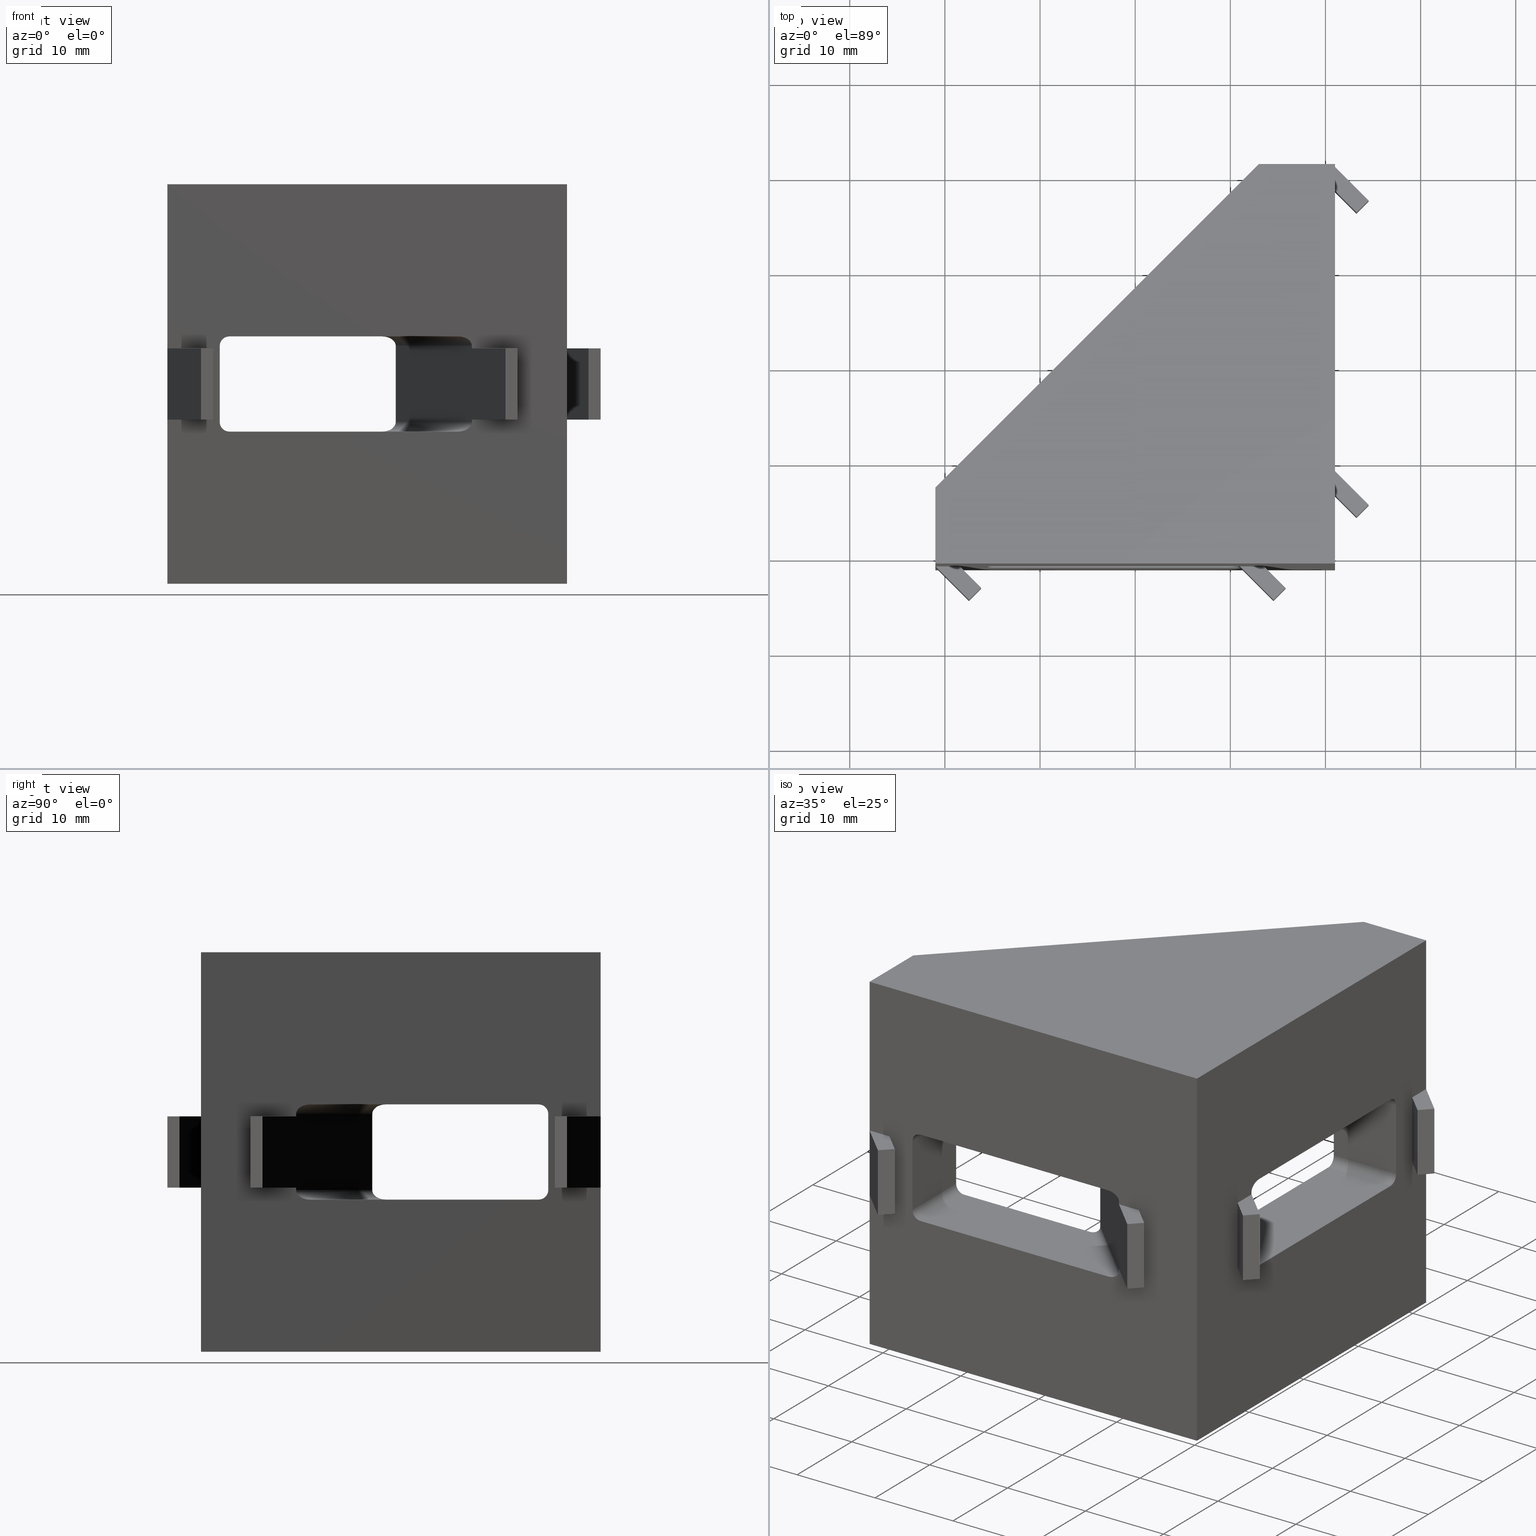
[diagram: canonical four-view strip — front | top / right | iso, engineering-drawing reading convention]
A machine part, canonical four-view strip (front | top / right | iso — engineering-drawing reading convention). The complete STEP part file that produces these views, byte-faithful:
ISO-10303-21;
HEADER;
/* Generated by software containing ST-Developer
 * from STEP Tools, Inc. (www.steptools.com) 
 */

FILE_DESCRIPTION(
/* description */ ('SQUADRETTA 42X42X42 PER CAVA 8 CON'),
/* implementation_level */ '2;1');

FILE_NAME(
/* name */ 
'Q:\\Catalogo\\2_Accessori Dierre\\Per Download Web e catalogo cartace
o\\CATALOGO ELEMENTI ASSEMBLAGGIO\\PAGINA 34\\DSQAL0000051.stp',
/* time_stamp */ '2018-05-10T15:56:38+02:00',
/* author */ ('fzagni'),
/* organization */ (''),
/* preprocessor_version */ 'ST-DEVELOPER v16.1',
/* originating_system */ 'Autodesk Inventor 2016',
/* authorisation */ '');

FILE_SCHEMA (('AUTOMOTIVE_DESIGN { 1 0 10303 214 3 1 1 }'));
ENDSEC;

DATA;
#10=MECHANICAL_DESIGN_GEOMETRIC_PRESENTATION_REPRESENTATION('',(#13),#1443);
#11=SHAPE_REPRESENTATION_RELATIONSHIP('SRR','None',#1452,#12);
#12=ADVANCED_BREP_SHAPE_REPRESENTATION('',(#14),#1442);
#13=STYLED_ITEM('',(#1461),#14);
#14=MANIFOLD_SOLID_BREP('Solido1',#891);
#15=FACE_BOUND('',#144,.T.);
#16=FACE_BOUND('',#148,.T.);
#17=FACE_BOUND('',#153,.T.);
#18=FACE_BOUND('',#155,.T.);
#19=CIRCLE('',#898,1.);
#20=CIRCLE('',#899,1.);
#21=CIRCLE('',#902,1.);
#22=CIRCLE('',#903,1.);
#23=CIRCLE('',#913,1.);
#24=CIRCLE('',#914,1.);
#25=CIRCLE('',#920,1.);
#26=CIRCLE('',#921,1.);
#27=PLANE('',#896);
#28=PLANE('',#900);
#29=PLANE('',#904);
#30=PLANE('',#911);
#31=PLANE('',#915);
#32=PLANE('',#922);
#33=PLANE('',#923);
#34=PLANE('',#924);
#35=PLANE('',#925);
#36=PLANE('',#926);
#37=PLANE('',#927);
#38=PLANE('',#928);
#39=PLANE('',#929);
#40=PLANE('',#930);
#41=PLANE('',#931);
#42=PLANE('',#932);
#43=PLANE('',#933);
#44=PLANE('',#934);
#45=PLANE('',#935);
#46=PLANE('',#936);
#47=PLANE('',#937);
#48=PLANE('',#938);
#49=PLANE('',#939);
#50=PLANE('',#940);
#51=PLANE('',#941);
#52=PLANE('',#942);
#53=PLANE('',#943);
#54=PLANE('',#944);
#55=PLANE('',#945);
#56=PLANE('',#946);
#57=PLANE('',#947);
#58=PLANE('',#948);
#59=PLANE('',#949);
#60=PLANE('',#950);
#61=PLANE('',#951);
#62=PLANE('',#952);
#63=PLANE('',#953);
#64=PLANE('',#954);
#65=FACE_OUTER_BOUND('',#111,.T.);
#66=FACE_OUTER_BOUND('',#112,.T.);
#67=FACE_OUTER_BOUND('',#113,.T.);
#68=FACE_OUTER_BOUND('',#114,.T.);
#69=FACE_OUTER_BOUND('',#115,.T.);
#70=FACE_OUTER_BOUND('',#116,.T.);
#71=FACE_OUTER_BOUND('',#117,.T.);
#72=FACE_OUTER_BOUND('',#118,.T.);
#73=FACE_OUTER_BOUND('',#119,.T.);
#74=FACE_OUTER_BOUND('',#120,.T.);
#75=FACE_OUTER_BOUND('',#121,.T.);
#76=FACE_OUTER_BOUND('',#122,.T.);
#77=FACE_OUTER_BOUND('',#123,.T.);
#78=FACE_OUTER_BOUND('',#124,.T.);
#79=FACE_OUTER_BOUND('',#125,.T.);
#80=FACE_OUTER_BOUND('',#126,.T.);
#81=FACE_OUTER_BOUND('',#127,.T.);
#82=FACE_OUTER_BOUND('',#128,.T.);
#83=FACE_OUTER_BOUND('',#129,.T.);
#84=FACE_OUTER_BOUND('',#130,.T.);
#85=FACE_OUTER_BOUND('',#131,.T.);
#86=FACE_OUTER_BOUND('',#132,.T.);
#87=FACE_OUTER_BOUND('',#133,.T.);
#88=FACE_OUTER_BOUND('',#134,.T.);
#89=FACE_OUTER_BOUND('',#135,.T.);
#90=FACE_OUTER_BOUND('',#136,.T.);
#91=FACE_OUTER_BOUND('',#137,.T.);
#92=FACE_OUTER_BOUND('',#138,.T.);
#93=FACE_OUTER_BOUND('',#139,.T.);
#94=FACE_OUTER_BOUND('',#140,.T.);
#95=FACE_OUTER_BOUND('',#141,.T.);
#96=FACE_OUTER_BOUND('',#142,.T.);
#97=FACE_OUTER_BOUND('',#143,.T.);
#98=FACE_OUTER_BOUND('',#145,.T.);
#99=FACE_OUTER_BOUND('',#146,.T.);
#100=FACE_OUTER_BOUND('',#147,.T.);
#101=FACE_OUTER_BOUND('',#149,.T.);
#102=FACE_OUTER_BOUND('',#150,.T.);
#103=FACE_OUTER_BOUND('',#151,.T.);
#104=FACE_OUTER_BOUND('',#152,.T.);
#105=FACE_OUTER_BOUND('',#154,.T.);
#106=FACE_OUTER_BOUND('',#156,.T.);
#107=FACE_OUTER_BOUND('',#157,.T.);
#108=FACE_OUTER_BOUND('',#158,.T.);
#109=FACE_OUTER_BOUND('',#159,.T.);
#110=FACE_OUTER_BOUND('',#160,.T.);
#111=EDGE_LOOP('',(#589,#590,#591,#592));
#112=EDGE_LOOP('',(#593,#594,#595,#596));
#113=EDGE_LOOP('',(#597,#598,#599,#600));
#114=EDGE_LOOP('',(#601,#602,#603,#604));
#115=EDGE_LOOP('',(#605,#606,#607,#608));
#116=EDGE_LOOP('',(#609,#610,#611,#612));
#117=EDGE_LOOP('',(#613,#614,#615,#616));
#118=EDGE_LOOP('',(#617,#618,#619,#620));
#119=EDGE_LOOP('',(#621,#622,#623,#624));
#120=EDGE_LOOP('',(#625,#626,#627,#628));
#121=EDGE_LOOP('',(#629,#630,#631,#632));
#122=EDGE_LOOP('',(#633,#634,#635,#636));
#123=EDGE_LOOP('',(#637,#638,#639,#640));
#124=EDGE_LOOP('',(#641,#642,#643,#644));
#125=EDGE_LOOP('',(#645,#646,#647,#648));
#126=EDGE_LOOP('',(#649,#650,#651,#652));
#127=EDGE_LOOP('',(#653,#654,#655,#656));
#128=EDGE_LOOP('',(#657,#658,#659,#660));
#129=EDGE_LOOP('',(#661,#662,#663,#664));
#130=EDGE_LOOP('',(#665,#666,#667,#668));
#131=EDGE_LOOP('',(#669,#670,#671,#672));
#132=EDGE_LOOP('',(#673,#674,#675,#676));
#133=EDGE_LOOP('',(#677,#678,#679,#680));
#134=EDGE_LOOP('',(#681,#682,#683,#684));
#135=EDGE_LOOP('',(#685,#686,#687,#688));
#136=EDGE_LOOP('',(#689,#690,#691,#692));
#137=EDGE_LOOP('',(#693,#694,#695,#696));
#138=EDGE_LOOP('',(#697,#698,#699,#700));
#139=EDGE_LOOP('',(#701,#702,#703,#704));
#140=EDGE_LOOP('',(#705,#706,#707,#708));
#141=EDGE_LOOP('',(#709,#710,#711,#712));
#142=EDGE_LOOP('',(#713,#714,#715,#716));
#143=EDGE_LOOP('',(#717,#718,#719,#720,#721,#722,#723,#724));
#144=EDGE_LOOP('',(#725,#726,#727,#728,#729,#730,#731,#732,#733,#734,#735,
#736));
#145=EDGE_LOOP('',(#737,#738,#739,#740,#741,#742,#743,#744));
#146=EDGE_LOOP('',(#745,#746,#747,#748,#749,#750,#751,#752));
#147=EDGE_LOOP('',(#753,#754,#755,#756,#757,#758,#759,#760));
#148=EDGE_LOOP('',(#761,#762,#763,#764,#765,#766,#767,#768,#769,#770,#771,
#772));
#149=EDGE_LOOP('',(#773,#774,#775));
#150=EDGE_LOOP('',(#776,#777,#778,#779,#780));
#151=EDGE_LOOP('',(#781,#782,#783,#784));
#152=EDGE_LOOP('',(#785,#786,#787,#788));
#153=EDGE_LOOP('',(#789,#790,#791,#792,#793,#794,#795,#796));
#154=EDGE_LOOP('',(#797,#798,#799,#800));
#155=EDGE_LOOP('',(#801,#802,#803,#804,#805,#806,#807,#808));
#156=EDGE_LOOP('',(#809,#810,#811,#812,#813,#814,#815,#816));
#157=EDGE_LOOP('',(#817,#818,#819,#820,#821));
#158=EDGE_LOOP('',(#822,#823,#824));
#159=EDGE_LOOP('',(#825,#826,#827,#828));
#160=EDGE_LOOP('',(#829,#830,#831,#832,#833,#834,#835,#836));
#161=LINE('',#1195,#269);
#162=LINE('',#1198,#270);
#163=LINE('',#1201,#271);
#164=LINE('',#1203,#272);
#165=LINE('',#1204,#273);
#166=LINE('',#1209,#274);
#167=LINE('',#1213,#275);
#168=LINE('',#1215,#276);
#169=LINE('',#1216,#277);
#170=LINE('',#1221,#278);
#171=LINE('',#1225,#279);
#172=LINE('',#1227,#280);
#173=LINE('',#1228,#281);
#174=LINE('',#1234,#282);
#175=LINE('',#1240,#283);
#176=LINE('',#1243,#284);
#177=LINE('',#1246,#285);
#178=LINE('',#1248,#286);
#179=LINE('',#1249,#287);
#180=LINE('',#1255,#288);
#181=LINE('',#1258,#289);
#182=LINE('',#1261,#290);
#183=LINE('',#1263,#291);
#184=LINE('',#1264,#292);
#185=LINE('',#1270,#293);
#186=LINE('',#1275,#294);
#187=LINE('',#1278,#295);
#188=LINE('',#1279,#296);
#189=LINE('',#1283,#297);
#190=LINE('',#1285,#298);
#191=LINE('',#1287,#299);
#192=LINE('',#1288,#300);
#193=LINE('',#1291,#301);
#194=LINE('',#1293,#302);
#195=LINE('',#1294,#303);
#196=LINE('',#1297,#304);
#197=LINE('',#1298,#305);
#198=LINE('',#1301,#306);
#199=LINE('',#1302,#307);
#200=LINE('',#1304,#308);
#201=LINE('',#1308,#309);
#202=LINE('',#1310,#310);
#203=LINE('',#1312,#311);
#204=LINE('',#1313,#312);
#205=LINE('',#1316,#313);
#206=LINE('',#1318,#314);
#207=LINE('',#1319,#315);
#208=LINE('',#1322,#316);
#209=LINE('',#1323,#317);
#210=LINE('',#1326,#318);
#211=LINE('',#1327,#319);
#212=LINE('',#1331,#320);
#213=LINE('',#1333,#321);
#214=LINE('',#1335,#322);
#215=LINE('',#1336,#323);
#216=LINE('',#1339,#324);
#217=LINE('',#1341,#325);
#218=LINE('',#1342,#326);
#219=LINE('',#1345,#327);
#220=LINE('',#1346,#328);
#221=LINE('',#1349,#329);
#222=LINE('',#1350,#330);
#223=LINE('',#1354,#331);
#224=LINE('',#1356,#332);
#225=LINE('',#1358,#333);
#226=LINE('',#1359,#334);
#227=LINE('',#1362,#335);
#228=LINE('',#1364,#336);
#229=LINE('',#1365,#337);
#230=LINE('',#1368,#338);
#231=LINE('',#1369,#339);
#232=LINE('',#1372,#340);
#233=LINE('',#1373,#341);
#234=LINE('',#1375,#342);
#235=LINE('',#1378,#343);
#236=LINE('',#1380,#344);
#237=LINE('',#1382,#345);
#238=LINE('',#1384,#346);
#239=LINE('',#1385,#347);
#240=LINE('',#1386,#348);
#241=LINE('',#1387,#349);
#242=LINE('',#1389,#350);
#243=LINE('',#1391,#351);
#244=LINE('',#1392,#352);
#245=LINE('',#1393,#353);
#246=LINE('',#1396,#354);
#247=LINE('',#1397,#355);
#248=LINE('',#1399,#356);
#249=LINE('',#1400,#357);
#250=LINE('',#1404,#358);
#251=LINE('',#1406,#359);
#252=LINE('',#1407,#360);
#253=LINE('',#1411,#361);
#254=LINE('',#1412,#362);
#255=LINE('',#1413,#363);
#256=LINE('',#1415,#364);
#257=LINE('',#1416,#365);
#258=LINE('',#1419,#366);
#259=LINE('',#1421,#367);
#260=LINE('',#1422,#368);
#261=LINE('',#1425,#369);
#262=LINE('',#1426,#370);
#263=LINE('',#1429,#371);
#264=LINE('',#1430,#372);
#265=LINE('',#1433,#373);
#266=LINE('',#1434,#374);
#267=LINE('',#1436,#375);
#268=LINE('',#1438,#376);
#269=VECTOR('',#961,11.3137084989847);
#270=VECTOR('',#964,11.3137084989847);
#271=VECTOR('',#967,16.0857864376269);
#272=VECTOR('',#968,8.);
#273=VECTOR('',#969,24.0857864376269);
#274=VECTOR('',#974,8.);
#275=VECTOR('',#979,8.);
#276=VECTOR('',#980,8.);
#277=VECTOR('',#981,8.);
#278=VECTOR('',#986,8.);
#279=VECTOR('',#991,16.0857864376269);
#280=VECTOR('',#992,11.3137084989847);
#281=VECTOR('',#993,24.0857864376269);
#282=VECTOR('',#1000,11.3137084989847);
#283=VECTOR('',#1005,11.3137084989848);
#284=VECTOR('',#1008,11.3137084989848);
#285=VECTOR('',#1011,16.0857864376269);
#286=VECTOR('',#1012,8.);
#287=VECTOR('',#1013,24.0857864376269);
#288=VECTOR('',#1018,8.);
#289=VECTOR('',#1021,8.);
#290=VECTOR('',#1024,16.0857864376269);
#291=VECTOR('',#1025,11.3137084989848);
#292=VECTOR('',#1026,24.0857864376269);
#293=VECTOR('',#1033,11.3137084989848);
#294=VECTOR('',#1038,8.);
#295=VECTOR('',#1043,8.);
#296=VECTOR('',#1044,8.);
#297=VECTOR('',#1047,2.54558441227157);
#298=VECTOR('',#1048,3.19999999999999);
#299=VECTOR('',#1049,1.8);
#300=VECTOR('',#1050,5.);
#301=VECTOR('',#1053,7.5);
#302=VECTOR('',#1054,3.19999999999999);
#303=VECTOR('',#1055,7.5);
#304=VECTOR('',#1058,1.8);
#305=VECTOR('',#1059,7.5);
#306=VECTOR('',#1062,5.);
#307=VECTOR('',#1063,7.5);
#308=VECTOR('',#1066,2.54558441227157);
#309=VECTOR('',#1069,3.20000000000001);
#310=VECTOR('',#1070,1.79999999999999);
#311=VECTOR('',#1071,5.);
#312=VECTOR('',#1072,2.54558441227157);
#313=VECTOR('',#1075,7.5);
#314=VECTOR('',#1076,1.79999999999999);
#315=VECTOR('',#1077,7.5);
#316=VECTOR('',#1080,7.5);
#317=VECTOR('',#1081,3.20000000000001);
#318=VECTOR('',#1084,2.54558441227157);
#319=VECTOR('',#1085,5.);
#320=VECTOR('',#1088,2.54558441227158);
#321=VECTOR('',#1089,5.);
#322=VECTOR('',#1090,1.8);
#323=VECTOR('',#1091,3.19999999999999);
#324=VECTOR('',#1094,7.5);
#325=VECTOR('',#1095,1.8);
#326=VECTOR('',#1096,7.5);
#327=VECTOR('',#1099,3.19999999999999);
#328=VECTOR('',#1100,7.5);
#329=VECTOR('',#1103,2.54558441227158);
#330=VECTOR('',#1104,5.);
#331=VECTOR('',#1107,3.19999999999999);
#332=VECTOR('',#1108,2.54558441227158);
#333=VECTOR('',#1109,5.);
#334=VECTOR('',#1110,1.8);
#335=VECTOR('',#1113,7.5);
#336=VECTOR('',#1114,5.);
#337=VECTOR('',#1115,7.5);
#338=VECTOR('',#1118,1.8);
#339=VECTOR('',#1119,7.5);
#340=VECTOR('',#1122,3.19999999999999);
#341=VECTOR('',#1123,7.5);
#342=VECTOR('',#1126,2.54558441227158);
#343=VECTOR('',#1129,17.25);
#344=VECTOR('',#1130,42.);
#345=VECTOR('',#1131,42.);
#346=VECTOR('',#1132,42.);
#347=VECTOR('',#1133,17.25);
#348=VECTOR('',#1134,0.249999999999981);
#349=VECTOR('',#1135,0.25000000000002);
#350=VECTOR('',#1138,8.);
#351=VECTOR('',#1141,0.250000000000007);
#352=VECTOR('',#1142,0.249999999999992);
#353=VECTOR('',#1143,8.);
#354=VECTOR('',#1146,17.25);
#355=VECTOR('',#1147,42.);
#356=VECTOR('',#1148,42.);
#357=VECTOR('',#1149,17.25);
#358=VECTOR('',#1152,34.);
#359=VECTOR('',#1153,48.0832611206852);
#360=VECTOR('',#1154,34.);
#361=VECTOR('',#1157,48.0832611206852);
#362=VECTOR('',#1158,8.);
#363=VECTOR('',#1159,8.);
#364=VECTOR('',#1162,5.);
#365=VECTOR('',#1163,5.);
#366=VECTOR('',#1166,32.);
#367=VECTOR('',#1167,34.);
#368=VECTOR('',#1168,32.);
#369=VECTOR('',#1171,32.);
#370=VECTOR('',#1172,34.);
#371=VECTOR('',#1175,8.);
#372=VECTOR('',#1176,5.);
#373=VECTOR('',#1179,48.0832611206852);
#374=VECTOR('',#1180,8.);
#375=VECTOR('',#1183,48.0832611206852);
#376=VECTOR('',#1186,5.);
#377=ELLIPSE('',#894,1.41421356237309,1.);
#378=ELLIPSE('',#895,1.41421356237309,1.);
#379=ELLIPSE('',#906,1.41421356237309,1.);
#380=ELLIPSE('',#907,1.41421356237309,1.);
#381=ELLIPSE('',#909,1.4142135623731,1.);
#382=ELLIPSE('',#910,1.4142135623731,1.);
#383=ELLIPSE('',#917,1.4142135623731,1.);
#384=ELLIPSE('',#918,1.4142135623731,1.);
#385=VERTEX_POINT('',#1191);
#386=VERTEX_POINT('',#1192);
#387=VERTEX_POINT('',#1194);
#388=VERTEX_POINT('',#1196);
#389=VERTEX_POINT('',#1200);
#390=VERTEX_POINT('',#1202);
#391=VERTEX_POINT('',#1206);
#392=VERTEX_POINT('',#1208);
#393=VERTEX_POINT('',#1212);
#394=VERTEX_POINT('',#1214);
#395=VERTEX_POINT('',#1218);
#396=VERTEX_POINT('',#1220);
#397=VERTEX_POINT('',#1224);
#398=VERTEX_POINT('',#1226);
#399=VERTEX_POINT('',#1230);
#400=VERTEX_POINT('',#1232);
#401=VERTEX_POINT('',#1236);
#402=VERTEX_POINT('',#1237);
#403=VERTEX_POINT('',#1239);
#404=VERTEX_POINT('',#1241);
#405=VERTEX_POINT('',#1245);
#406=VERTEX_POINT('',#1247);
#407=VERTEX_POINT('',#1251);
#408=VERTEX_POINT('',#1252);
#409=VERTEX_POINT('',#1254);
#410=VERTEX_POINT('',#1256);
#411=VERTEX_POINT('',#1260);
#412=VERTEX_POINT('',#1262);
#413=VERTEX_POINT('',#1266);
#414=VERTEX_POINT('',#1268);
#415=VERTEX_POINT('',#1272);
#416=VERTEX_POINT('',#1274);
#417=VERTEX_POINT('',#1281);
#418=VERTEX_POINT('',#1282);
#419=VERTEX_POINT('',#1284);
#420=VERTEX_POINT('',#1286);
#421=VERTEX_POINT('',#1290);
#422=VERTEX_POINT('',#1292);
#423=VERTEX_POINT('',#1296);
#424=VERTEX_POINT('',#1300);
#425=VERTEX_POINT('',#1306);
#426=VERTEX_POINT('',#1307);
#427=VERTEX_POINT('',#1309);
#428=VERTEX_POINT('',#1311);
#429=VERTEX_POINT('',#1315);
#430=VERTEX_POINT('',#1317);
#431=VERTEX_POINT('',#1321);
#432=VERTEX_POINT('',#1325);
#433=VERTEX_POINT('',#1329);
#434=VERTEX_POINT('',#1330);
#435=VERTEX_POINT('',#1332);
#436=VERTEX_POINT('',#1334);
#437=VERTEX_POINT('',#1338);
#438=VERTEX_POINT('',#1340);
#439=VERTEX_POINT('',#1344);
#440=VERTEX_POINT('',#1348);
#441=VERTEX_POINT('',#1352);
#442=VERTEX_POINT('',#1353);
#443=VERTEX_POINT('',#1355);
#444=VERTEX_POINT('',#1357);
#445=VERTEX_POINT('',#1361);
#446=VERTEX_POINT('',#1363);
#447=VERTEX_POINT('',#1367);
#448=VERTEX_POINT('',#1371);
#449=VERTEX_POINT('',#1377);
#450=VERTEX_POINT('',#1379);
#451=VERTEX_POINT('',#1381);
#452=VERTEX_POINT('',#1383);
#453=VERTEX_POINT('',#1395);
#454=VERTEX_POINT('',#1398);
#455=VERTEX_POINT('',#1402);
#456=VERTEX_POINT('',#1403);
#457=VERTEX_POINT('',#1405);
#458=VERTEX_POINT('',#1409);
#459=VERTEX_POINT('',#1410);
#460=VERTEX_POINT('',#1418);
#461=VERTEX_POINT('',#1420);
#462=VERTEX_POINT('',#1424);
#463=VERTEX_POINT('',#1428);
#464=VERTEX_POINT('',#1432);
#465=EDGE_CURVE('',#385,#386,#377,.T.);
#466=EDGE_CURVE('',#386,#387,#161,.T.);
#467=EDGE_CURVE('',#387,#388,#378,.T.);
#468=EDGE_CURVE('',#388,#385,#162,.T.);
#469=EDGE_CURVE('',#389,#386,#163,.T.);
#470=EDGE_CURVE('',#390,#389,#164,.T.);
#471=EDGE_CURVE('',#387,#390,#165,.T.);
#472=EDGE_CURVE('',#389,#391,#19,.T.);
#473=EDGE_CURVE('',#391,#392,#166,.T.);
#474=EDGE_CURVE('',#392,#390,#20,.T.);
#475=EDGE_CURVE('',#393,#391,#167,.T.);
#476=EDGE_CURVE('',#394,#393,#168,.T.);
#477=EDGE_CURVE('',#392,#394,#169,.T.);
#478=EDGE_CURVE('',#393,#395,#21,.T.);
#479=EDGE_CURVE('',#395,#396,#170,.T.);
#480=EDGE_CURVE('',#396,#394,#22,.T.);
#481=EDGE_CURVE('',#397,#395,#171,.T.);
#482=EDGE_CURVE('',#398,#397,#172,.T.);
#483=EDGE_CURVE('',#396,#398,#173,.T.);
#484=EDGE_CURVE('',#399,#398,#379,.T.);
#485=EDGE_CURVE('',#397,#400,#380,.T.);
#486=EDGE_CURVE('',#400,#399,#174,.T.);
#487=EDGE_CURVE('',#401,#402,#381,.T.);
#488=EDGE_CURVE('',#402,#403,#175,.T.);
#489=EDGE_CURVE('',#403,#404,#382,.T.);
#490=EDGE_CURVE('',#404,#401,#176,.T.);
#491=EDGE_CURVE('',#405,#402,#177,.T.);
#492=EDGE_CURVE('',#406,#405,#178,.T.);
#493=EDGE_CURVE('',#403,#406,#179,.T.);
#494=EDGE_CURVE('',#407,#408,#23,.T.);
#495=EDGE_CURVE('',#408,#409,#180,.T.);
#496=EDGE_CURVE('',#409,#410,#24,.T.);
#497=EDGE_CURVE('',#410,#407,#181,.T.);
#498=EDGE_CURVE('',#411,#408,#182,.T.);
#499=EDGE_CURVE('',#412,#411,#183,.T.);
#500=EDGE_CURVE('',#409,#412,#184,.T.);
#501=EDGE_CURVE('',#413,#412,#383,.T.);
#502=EDGE_CURVE('',#411,#414,#384,.T.);
#503=EDGE_CURVE('',#414,#413,#185,.T.);
#504=EDGE_CURVE('',#405,#415,#25,.T.);
#505=EDGE_CURVE('',#415,#416,#186,.T.);
#506=EDGE_CURVE('',#416,#406,#26,.T.);
#507=EDGE_CURVE('',#416,#410,#187,.T.);
#508=EDGE_CURVE('',#407,#415,#188,.T.);
#509=EDGE_CURVE('',#417,#418,#189,.T.);
#510=EDGE_CURVE('',#417,#419,#190,.T.);
#511=EDGE_CURVE('',#419,#420,#191,.T.);
#512=EDGE_CURVE('',#420,#418,#192,.T.);
#513=EDGE_CURVE('',#421,#417,#193,.T.);
#514=EDGE_CURVE('',#422,#421,#194,.T.);
#515=EDGE_CURVE('',#422,#419,#195,.T.);
#516=EDGE_CURVE('',#423,#422,#196,.T.);
#517=EDGE_CURVE('',#423,#420,#197,.T.);
#518=EDGE_CURVE('',#424,#423,#198,.T.);
#519=EDGE_CURVE('',#424,#418,#199,.T.);
#520=EDGE_CURVE('',#424,#421,#200,.T.);
#521=EDGE_CURVE('',#425,#426,#201,.T.);
#522=EDGE_CURVE('',#426,#427,#202,.T.);
#523=EDGE_CURVE('',#427,#428,#203,.T.);
#524=EDGE_CURVE('',#425,#428,#204,.T.);
#525=EDGE_CURVE('',#429,#426,#205,.T.);
#526=EDGE_CURVE('',#430,#429,#206,.T.);
#527=EDGE_CURVE('',#430,#427,#207,.T.);
#528=EDGE_CURVE('',#431,#425,#208,.T.);
#529=EDGE_CURVE('',#429,#431,#209,.T.);
#530=EDGE_CURVE('',#432,#431,#210,.T.);
#531=EDGE_CURVE('',#432,#430,#211,.T.);
#532=EDGE_CURVE('',#433,#434,#212,.T.);
#533=EDGE_CURVE('',#433,#435,#213,.T.);
#534=EDGE_CURVE('',#435,#436,#214,.T.);
#535=EDGE_CURVE('',#436,#434,#215,.T.);
#536=EDGE_CURVE('',#437,#435,#216,.T.);
#537=EDGE_CURVE('',#438,#437,#217,.T.);
#538=EDGE_CURVE('',#438,#436,#218,.T.);
#539=EDGE_CURVE('',#439,#438,#219,.T.);
#540=EDGE_CURVE('',#434,#439,#220,.T.);
#541=EDGE_CURVE('',#439,#440,#221,.T.);
#542=EDGE_CURVE('',#437,#440,#222,.T.);
#543=EDGE_CURVE('',#441,#442,#223,.T.);
#544=EDGE_CURVE('',#443,#442,#224,.T.);
#545=EDGE_CURVE('',#443,#444,#225,.T.);
#546=EDGE_CURVE('',#444,#441,#226,.T.);
#547=EDGE_CURVE('',#443,#445,#227,.T.);
#548=EDGE_CURVE('',#446,#445,#228,.T.);
#549=EDGE_CURVE('',#444,#446,#229,.T.);
#550=EDGE_CURVE('',#447,#446,#230,.T.);
#551=EDGE_CURVE('',#441,#447,#231,.T.);
#552=EDGE_CURVE('',#448,#447,#232,.T.);
#553=EDGE_CURVE('',#442,#448,#233,.T.);
#554=EDGE_CURVE('',#448,#445,#234,.T.);
#555=EDGE_CURVE('',#418,#449,#235,.T.);
#556=EDGE_CURVE('',#450,#449,#236,.T.);
#557=EDGE_CURVE('',#451,#450,#237,.T.);
#558=EDGE_CURVE('',#452,#451,#238,.T.);
#559=EDGE_CURVE('',#452,#424,#239,.T.);
#560=EDGE_CURVE('',#428,#404,#240,.T.);
#561=EDGE_CURVE('',#413,#432,#241,.T.);
#562=EDGE_CURVE('',#401,#414,#242,.T.);
#563=EDGE_CURVE('',#440,#388,#243,.T.);
#564=EDGE_CURVE('',#399,#433,#244,.T.);
#565=EDGE_CURVE('',#385,#400,#245,.T.);
#566=EDGE_CURVE('',#445,#453,#246,.T.);
#567=EDGE_CURVE('',#451,#453,#247,.T.);
#568=EDGE_CURVE('',#454,#450,#248,.T.);
#569=EDGE_CURVE('',#454,#443,#249,.T.);
#570=EDGE_CURVE('',#455,#456,#250,.T.);
#571=EDGE_CURVE('',#457,#455,#251,.T.);
#572=EDGE_CURVE('',#456,#457,#252,.T.);
#573=EDGE_CURVE('',#458,#459,#253,.T.);
#574=EDGE_CURVE('',#458,#454,#254,.T.);
#575=EDGE_CURVE('',#449,#459,#255,.T.);
#576=EDGE_CURVE('',#457,#459,#256,.T.);
#577=EDGE_CURVE('',#455,#458,#257,.T.);
#578=EDGE_CURVE('',#460,#456,#258,.T.);
#579=EDGE_CURVE('',#460,#461,#259,.T.);
#580=EDGE_CURVE('',#461,#455,#260,.T.);
#581=EDGE_CURVE('',#462,#457,#261,.T.);
#582=EDGE_CURVE('',#462,#460,#262,.T.);
#583=EDGE_CURVE('',#463,#452,#263,.T.);
#584=EDGE_CURVE('',#463,#462,#264,.T.);
#585=EDGE_CURVE('',#463,#464,#265,.T.);
#586=EDGE_CURVE('',#453,#464,#266,.T.);
#587=EDGE_CURVE('',#462,#461,#267,.T.);
#588=EDGE_CURVE('',#464,#461,#268,.T.);
#589=ORIENTED_EDGE('',*,*,#465,.T.);
#590=ORIENTED_EDGE('',*,*,#466,.T.);
#591=ORIENTED_EDGE('',*,*,#467,.T.);
#592=ORIENTED_EDGE('',*,*,#468,.T.);
#593=ORIENTED_EDGE('',*,*,#466,.F.);
#594=ORIENTED_EDGE('',*,*,#469,.F.);
#595=ORIENTED_EDGE('',*,*,#470,.F.);
#596=ORIENTED_EDGE('',*,*,#471,.F.);
#597=ORIENTED_EDGE('',*,*,#472,.T.);
#598=ORIENTED_EDGE('',*,*,#473,.T.);
#599=ORIENTED_EDGE('',*,*,#474,.T.);
#600=ORIENTED_EDGE('',*,*,#470,.T.);
#601=ORIENTED_EDGE('',*,*,#473,.F.);
#602=ORIENTED_EDGE('',*,*,#475,.F.);
#603=ORIENTED_EDGE('',*,*,#476,.F.);
#604=ORIENTED_EDGE('',*,*,#477,.F.);
#605=ORIENTED_EDGE('',*,*,#478,.T.);
#606=ORIENTED_EDGE('',*,*,#479,.T.);
#607=ORIENTED_EDGE('',*,*,#480,.T.);
#608=ORIENTED_EDGE('',*,*,#476,.T.);
#609=ORIENTED_EDGE('',*,*,#479,.F.);
#610=ORIENTED_EDGE('',*,*,#481,.F.);
#611=ORIENTED_EDGE('',*,*,#482,.F.);
#612=ORIENTED_EDGE('',*,*,#483,.F.);
#613=ORIENTED_EDGE('',*,*,#484,.T.);
#614=ORIENTED_EDGE('',*,*,#482,.T.);
#615=ORIENTED_EDGE('',*,*,#485,.T.);
#616=ORIENTED_EDGE('',*,*,#486,.T.);
#617=ORIENTED_EDGE('',*,*,#487,.T.);
#618=ORIENTED_EDGE('',*,*,#488,.T.);
#619=ORIENTED_EDGE('',*,*,#489,.T.);
#620=ORIENTED_EDGE('',*,*,#490,.T.);
#621=ORIENTED_EDGE('',*,*,#488,.F.);
#622=ORIENTED_EDGE('',*,*,#491,.F.);
#623=ORIENTED_EDGE('',*,*,#492,.F.);
#624=ORIENTED_EDGE('',*,*,#493,.F.);
#625=ORIENTED_EDGE('',*,*,#494,.T.);
#626=ORIENTED_EDGE('',*,*,#495,.T.);
#627=ORIENTED_EDGE('',*,*,#496,.T.);
#628=ORIENTED_EDGE('',*,*,#497,.T.);
#629=ORIENTED_EDGE('',*,*,#495,.F.);
#630=ORIENTED_EDGE('',*,*,#498,.F.);
#631=ORIENTED_EDGE('',*,*,#499,.F.);
#632=ORIENTED_EDGE('',*,*,#500,.F.);
#633=ORIENTED_EDGE('',*,*,#501,.T.);
#634=ORIENTED_EDGE('',*,*,#499,.T.);
#635=ORIENTED_EDGE('',*,*,#502,.T.);
#636=ORIENTED_EDGE('',*,*,#503,.T.);
#637=ORIENTED_EDGE('',*,*,#504,.T.);
#638=ORIENTED_EDGE('',*,*,#505,.T.);
#639=ORIENTED_EDGE('',*,*,#506,.T.);
#640=ORIENTED_EDGE('',*,*,#492,.T.);
#641=ORIENTED_EDGE('',*,*,#497,.F.);
#642=ORIENTED_EDGE('',*,*,#507,.F.);
#643=ORIENTED_EDGE('',*,*,#505,.F.);
#644=ORIENTED_EDGE('',*,*,#508,.F.);
#645=ORIENTED_EDGE('',*,*,#509,.F.);
#646=ORIENTED_EDGE('',*,*,#510,.T.);
#647=ORIENTED_EDGE('',*,*,#511,.T.);
#648=ORIENTED_EDGE('',*,*,#512,.T.);
#649=ORIENTED_EDGE('',*,*,#513,.F.);
#650=ORIENTED_EDGE('',*,*,#514,.F.);
#651=ORIENTED_EDGE('',*,*,#515,.T.);
#652=ORIENTED_EDGE('',*,*,#510,.F.);
#653=ORIENTED_EDGE('',*,*,#515,.F.);
#654=ORIENTED_EDGE('',*,*,#516,.F.);
#655=ORIENTED_EDGE('',*,*,#517,.T.);
#656=ORIENTED_EDGE('',*,*,#511,.F.);
#657=ORIENTED_EDGE('',*,*,#517,.F.);
#658=ORIENTED_EDGE('',*,*,#518,.F.);
#659=ORIENTED_EDGE('',*,*,#519,.T.);
#660=ORIENTED_EDGE('',*,*,#512,.F.);
#661=ORIENTED_EDGE('',*,*,#520,.F.);
#662=ORIENTED_EDGE('',*,*,#518,.T.);
#663=ORIENTED_EDGE('',*,*,#516,.T.);
#664=ORIENTED_EDGE('',*,*,#514,.T.);
#665=ORIENTED_EDGE('',*,*,#521,.T.);
#666=ORIENTED_EDGE('',*,*,#522,.T.);
#667=ORIENTED_EDGE('',*,*,#523,.T.);
#668=ORIENTED_EDGE('',*,*,#524,.F.);
#669=ORIENTED_EDGE('',*,*,#525,.F.);
#670=ORIENTED_EDGE('',*,*,#526,.F.);
#671=ORIENTED_EDGE('',*,*,#527,.T.);
#672=ORIENTED_EDGE('',*,*,#522,.F.);
#673=ORIENTED_EDGE('',*,*,#528,.F.);
#674=ORIENTED_EDGE('',*,*,#529,.F.);
#675=ORIENTED_EDGE('',*,*,#525,.T.);
#676=ORIENTED_EDGE('',*,*,#521,.F.);
#677=ORIENTED_EDGE('',*,*,#529,.T.);
#678=ORIENTED_EDGE('',*,*,#530,.F.);
#679=ORIENTED_EDGE('',*,*,#531,.T.);
#680=ORIENTED_EDGE('',*,*,#526,.T.);
#681=ORIENTED_EDGE('',*,*,#532,.F.);
#682=ORIENTED_EDGE('',*,*,#533,.T.);
#683=ORIENTED_EDGE('',*,*,#534,.T.);
#684=ORIENTED_EDGE('',*,*,#535,.T.);
#685=ORIENTED_EDGE('',*,*,#536,.F.);
#686=ORIENTED_EDGE('',*,*,#537,.F.);
#687=ORIENTED_EDGE('',*,*,#538,.T.);
#688=ORIENTED_EDGE('',*,*,#534,.F.);
#689=ORIENTED_EDGE('',*,*,#538,.F.);
#690=ORIENTED_EDGE('',*,*,#539,.F.);
#691=ORIENTED_EDGE('',*,*,#540,.F.);
#692=ORIENTED_EDGE('',*,*,#535,.F.);
#693=ORIENTED_EDGE('',*,*,#541,.F.);
#694=ORIENTED_EDGE('',*,*,#539,.T.);
#695=ORIENTED_EDGE('',*,*,#537,.T.);
#696=ORIENTED_EDGE('',*,*,#542,.T.);
#697=ORIENTED_EDGE('',*,*,#543,.T.);
#698=ORIENTED_EDGE('',*,*,#544,.F.);
#699=ORIENTED_EDGE('',*,*,#545,.T.);
#700=ORIENTED_EDGE('',*,*,#546,.T.);
#701=ORIENTED_EDGE('',*,*,#547,.T.);
#702=ORIENTED_EDGE('',*,*,#548,.F.);
#703=ORIENTED_EDGE('',*,*,#549,.F.);
#704=ORIENTED_EDGE('',*,*,#545,.F.);
#705=ORIENTED_EDGE('',*,*,#549,.T.);
#706=ORIENTED_EDGE('',*,*,#550,.F.);
#707=ORIENTED_EDGE('',*,*,#551,.F.);
#708=ORIENTED_EDGE('',*,*,#546,.F.);
#709=ORIENTED_EDGE('',*,*,#551,.T.);
#710=ORIENTED_EDGE('',*,*,#552,.F.);
#711=ORIENTED_EDGE('',*,*,#553,.F.);
#712=ORIENTED_EDGE('',*,*,#543,.F.);
#713=ORIENTED_EDGE('',*,*,#552,.T.);
#714=ORIENTED_EDGE('',*,*,#550,.T.);
#715=ORIENTED_EDGE('',*,*,#548,.T.);
#716=ORIENTED_EDGE('',*,*,#554,.F.);
#717=ORIENTED_EDGE('',*,*,#520,.T.);
#718=ORIENTED_EDGE('',*,*,#513,.T.);
#719=ORIENTED_EDGE('',*,*,#509,.T.);
#720=ORIENTED_EDGE('',*,*,#555,.T.);
#721=ORIENTED_EDGE('',*,*,#556,.F.);
#722=ORIENTED_EDGE('',*,*,#557,.F.);
#723=ORIENTED_EDGE('',*,*,#558,.F.);
#724=ORIENTED_EDGE('',*,*,#559,.T.);
#725=ORIENTED_EDGE('',*,*,#530,.T.);
#726=ORIENTED_EDGE('',*,*,#528,.T.);
#727=ORIENTED_EDGE('',*,*,#524,.T.);
#728=ORIENTED_EDGE('',*,*,#560,.T.);
#729=ORIENTED_EDGE('',*,*,#489,.F.);
#730=ORIENTED_EDGE('',*,*,#493,.T.);
#731=ORIENTED_EDGE('',*,*,#506,.F.);
#732=ORIENTED_EDGE('',*,*,#507,.T.);
#733=ORIENTED_EDGE('',*,*,#496,.F.);
#734=ORIENTED_EDGE('',*,*,#500,.T.);
#735=ORIENTED_EDGE('',*,*,#501,.F.);
#736=ORIENTED_EDGE('',*,*,#561,.T.);
#737=ORIENTED_EDGE('',*,*,#490,.F.);
#738=ORIENTED_EDGE('',*,*,#560,.F.);
#739=ORIENTED_EDGE('',*,*,#523,.F.);
#740=ORIENTED_EDGE('',*,*,#527,.F.);
#741=ORIENTED_EDGE('',*,*,#531,.F.);
#742=ORIENTED_EDGE('',*,*,#561,.F.);
#743=ORIENTED_EDGE('',*,*,#503,.F.);
#744=ORIENTED_EDGE('',*,*,#562,.F.);
#745=ORIENTED_EDGE('',*,*,#468,.F.);
#746=ORIENTED_EDGE('',*,*,#563,.F.);
#747=ORIENTED_EDGE('',*,*,#542,.F.);
#748=ORIENTED_EDGE('',*,*,#536,.T.);
#749=ORIENTED_EDGE('',*,*,#533,.F.);
#750=ORIENTED_EDGE('',*,*,#564,.F.);
#751=ORIENTED_EDGE('',*,*,#486,.F.);
#752=ORIENTED_EDGE('',*,*,#565,.F.);
#753=ORIENTED_EDGE('',*,*,#554,.T.);
#754=ORIENTED_EDGE('',*,*,#566,.T.);
#755=ORIENTED_EDGE('',*,*,#567,.F.);
#756=ORIENTED_EDGE('',*,*,#557,.T.);
#757=ORIENTED_EDGE('',*,*,#568,.F.);
#758=ORIENTED_EDGE('',*,*,#569,.T.);
#759=ORIENTED_EDGE('',*,*,#544,.T.);
#760=ORIENTED_EDGE('',*,*,#553,.T.);
#761=ORIENTED_EDGE('',*,*,#541,.T.);
#762=ORIENTED_EDGE('',*,*,#563,.T.);
#763=ORIENTED_EDGE('',*,*,#467,.F.);
#764=ORIENTED_EDGE('',*,*,#471,.T.);
#765=ORIENTED_EDGE('',*,*,#474,.F.);
#766=ORIENTED_EDGE('',*,*,#477,.T.);
#767=ORIENTED_EDGE('',*,*,#480,.F.);
#768=ORIENTED_EDGE('',*,*,#483,.T.);
#769=ORIENTED_EDGE('',*,*,#484,.F.);
#770=ORIENTED_EDGE('',*,*,#564,.T.);
#771=ORIENTED_EDGE('',*,*,#532,.T.);
#772=ORIENTED_EDGE('',*,*,#540,.T.);
#773=ORIENTED_EDGE('',*,*,#570,.F.);
#774=ORIENTED_EDGE('',*,*,#571,.F.);
#775=ORIENTED_EDGE('',*,*,#572,.F.);
#776=ORIENTED_EDGE('',*,*,#573,.F.);
#777=ORIENTED_EDGE('',*,*,#574,.T.);
#778=ORIENTED_EDGE('',*,*,#568,.T.);
#779=ORIENTED_EDGE('',*,*,#556,.T.);
#780=ORIENTED_EDGE('',*,*,#575,.T.);
#781=ORIENTED_EDGE('',*,*,#576,.F.);
#782=ORIENTED_EDGE('',*,*,#571,.T.);
#783=ORIENTED_EDGE('',*,*,#577,.T.);
#784=ORIENTED_EDGE('',*,*,#573,.T.);
#785=ORIENTED_EDGE('',*,*,#570,.T.);
#786=ORIENTED_EDGE('',*,*,#578,.F.);
#787=ORIENTED_EDGE('',*,*,#579,.T.);
#788=ORIENTED_EDGE('',*,*,#580,.T.);
#789=ORIENTED_EDGE('',*,*,#475,.T.);
#790=ORIENTED_EDGE('',*,*,#472,.F.);
#791=ORIENTED_EDGE('',*,*,#469,.T.);
#792=ORIENTED_EDGE('',*,*,#465,.F.);
#793=ORIENTED_EDGE('',*,*,#565,.T.);
#794=ORIENTED_EDGE('',*,*,#485,.F.);
#795=ORIENTED_EDGE('',*,*,#481,.T.);
#796=ORIENTED_EDGE('',*,*,#478,.F.);
#797=ORIENTED_EDGE('',*,*,#572,.T.);
#798=ORIENTED_EDGE('',*,*,#581,.F.);
#799=ORIENTED_EDGE('',*,*,#582,.T.);
#800=ORIENTED_EDGE('',*,*,#578,.T.);
#801=ORIENTED_EDGE('',*,*,#562,.T.);
#802=ORIENTED_EDGE('',*,*,#502,.F.);
#803=ORIENTED_EDGE('',*,*,#498,.T.);
#804=ORIENTED_EDGE('',*,*,#494,.F.);
#805=ORIENTED_EDGE('',*,*,#508,.T.);
#806=ORIENTED_EDGE('',*,*,#504,.F.);
#807=ORIENTED_EDGE('',*,*,#491,.T.);
#808=ORIENTED_EDGE('',*,*,#487,.F.);
#809=ORIENTED_EDGE('',*,*,#576,.T.);
#810=ORIENTED_EDGE('',*,*,#575,.F.);
#811=ORIENTED_EDGE('',*,*,#555,.F.);
#812=ORIENTED_EDGE('',*,*,#519,.F.);
#813=ORIENTED_EDGE('',*,*,#559,.F.);
#814=ORIENTED_EDGE('',*,*,#583,.F.);
#815=ORIENTED_EDGE('',*,*,#584,.T.);
#816=ORIENTED_EDGE('',*,*,#581,.T.);
#817=ORIENTED_EDGE('',*,*,#585,.F.);
#818=ORIENTED_EDGE('',*,*,#583,.T.);
#819=ORIENTED_EDGE('',*,*,#558,.T.);
#820=ORIENTED_EDGE('',*,*,#567,.T.);
#821=ORIENTED_EDGE('',*,*,#586,.T.);
#822=ORIENTED_EDGE('',*,*,#579,.F.);
#823=ORIENTED_EDGE('',*,*,#582,.F.);
#824=ORIENTED_EDGE('',*,*,#587,.T.);
#825=ORIENTED_EDGE('',*,*,#588,.T.);
#826=ORIENTED_EDGE('',*,*,#587,.F.);
#827=ORIENTED_EDGE('',*,*,#584,.F.);
#828=ORIENTED_EDGE('',*,*,#585,.T.);
#829=ORIENTED_EDGE('',*,*,#569,.F.);
#830=ORIENTED_EDGE('',*,*,#574,.F.);
#831=ORIENTED_EDGE('',*,*,#577,.F.);
#832=ORIENTED_EDGE('',*,*,#580,.F.);
#833=ORIENTED_EDGE('',*,*,#588,.F.);
#834=ORIENTED_EDGE('',*,*,#586,.F.);
#835=ORIENTED_EDGE('',*,*,#566,.F.);
#836=ORIENTED_EDGE('',*,*,#547,.F.);
#837=CYLINDRICAL_SURFACE('',#893,1.);
#838=CYLINDRICAL_SURFACE('',#897,1.);
#839=CYLINDRICAL_SURFACE('',#901,1.);
#840=CYLINDRICAL_SURFACE('',#905,1.);
#841=CYLINDRICAL_SURFACE('',#908,1.);
#842=CYLINDRICAL_SURFACE('',#912,1.);
#843=CYLINDRICAL_SURFACE('',#916,1.);
#844=CYLINDRICAL_SURFACE('',#919,1.);
#845=ADVANCED_FACE('',(#65),#837,.F.);
#846=ADVANCED_FACE('',(#66),#27,.F.);
#847=ADVANCED_FACE('',(#67),#838,.F.);
#848=ADVANCED_FACE('',(#68),#28,.F.);
#849=ADVANCED_FACE('',(#69),#839,.F.);
#850=ADVANCED_FACE('',(#70),#29,.F.);
#851=ADVANCED_FACE('',(#71),#840,.F.);
#852=ADVANCED_FACE('',(#72),#841,.F.);
#853=ADVANCED_FACE('',(#73),#30,.F.);
#854=ADVANCED_FACE('',(#74),#842,.F.);
#855=ADVANCED_FACE('',(#75),#31,.F.);
#856=ADVANCED_FACE('',(#76),#843,.F.);
#857=ADVANCED_FACE('',(#77),#844,.F.);
#858=ADVANCED_FACE('',(#78),#32,.F.);
#859=ADVANCED_FACE('',(#79),#33,.T.);
#860=ADVANCED_FACE('',(#80),#34,.T.);
#861=ADVANCED_FACE('',(#81),#35,.T.);
#862=ADVANCED_FACE('',(#82),#36,.T.);
#863=ADVANCED_FACE('',(#83),#37,.T.);
#864=ADVANCED_FACE('',(#84),#38,.T.);
#865=ADVANCED_FACE('',(#85),#39,.T.);
#866=ADVANCED_FACE('',(#86),#40,.T.);
#867=ADVANCED_FACE('',(#87),#41,.T.);
#868=ADVANCED_FACE('',(#88),#42,.T.);
#869=ADVANCED_FACE('',(#89),#43,.T.);
#870=ADVANCED_FACE('',(#90),#44,.T.);
#871=ADVANCED_FACE('',(#91),#45,.T.);
#872=ADVANCED_FACE('',(#92),#46,.T.);
#873=ADVANCED_FACE('',(#93),#47,.T.);
#874=ADVANCED_FACE('',(#94),#48,.T.);
#875=ADVANCED_FACE('',(#95),#49,.T.);
#876=ADVANCED_FACE('',(#96),#50,.T.);
#877=ADVANCED_FACE('',(#97,#15),#51,.T.);
#878=ADVANCED_FACE('',(#98),#52,.F.);
#879=ADVANCED_FACE('',(#99),#53,.F.);
#880=ADVANCED_FACE('',(#100,#16),#54,.T.);
#881=ADVANCED_FACE('',(#101),#55,.T.);
#882=ADVANCED_FACE('',(#102),#56,.F.);
#883=ADVANCED_FACE('',(#103),#57,.T.);
#884=ADVANCED_FACE('',(#104,#17),#58,.T.);
#885=ADVANCED_FACE('',(#105,#18),#59,.T.);
#886=ADVANCED_FACE('',(#106),#60,.T.);
#887=ADVANCED_FACE('',(#107),#61,.T.);
#888=ADVANCED_FACE('',(#108),#62,.F.);
#889=ADVANCED_FACE('',(#109),#63,.T.);
#890=ADVANCED_FACE('',(#110),#64,.T.);
#891=CLOSED_SHELL('',(#845,#846,#847,#848,#849,#850,#851,#852,#853,#854,
#855,#856,#857,#858,#859,#860,#861,#862,#863,#864,#865,#866,#867,#868,#869,
#870,#871,#872,#873,#874,#875,#876,#877,#878,#879,#880,#881,#882,#883,#884,
#885,#886,#887,#888,#889,#890));
#892=AXIS2_PLACEMENT_3D('placement',#1189,#955,#956);
#893=AXIS2_PLACEMENT_3D('',#1190,#957,#958);
#894=AXIS2_PLACEMENT_3D('',#1193,#959,#960);
#895=AXIS2_PLACEMENT_3D('',#1197,#962,#963);
#896=AXIS2_PLACEMENT_3D('',#1199,#965,#966);
#897=AXIS2_PLACEMENT_3D('',#1205,#970,#971);
#898=AXIS2_PLACEMENT_3D('',#1207,#972,#973);
#899=AXIS2_PLACEMENT_3D('',#1210,#975,#976);
#900=AXIS2_PLACEMENT_3D('',#1211,#977,#978);
#901=AXIS2_PLACEMENT_3D('',#1217,#982,#983);
#902=AXIS2_PLACEMENT_3D('',#1219,#984,#985);
#903=AXIS2_PLACEMENT_3D('',#1222,#987,#988);
#904=AXIS2_PLACEMENT_3D('',#1223,#989,#990);
#905=AXIS2_PLACEMENT_3D('',#1229,#994,#995);
#906=AXIS2_PLACEMENT_3D('',#1231,#996,#997);
#907=AXIS2_PLACEMENT_3D('',#1233,#998,#999);
#908=AXIS2_PLACEMENT_3D('',#1235,#1001,#1002);
#909=AXIS2_PLACEMENT_3D('',#1238,#1003,#1004);
#910=AXIS2_PLACEMENT_3D('',#1242,#1006,#1007);
#911=AXIS2_PLACEMENT_3D('',#1244,#1009,#1010);
#912=AXIS2_PLACEMENT_3D('',#1250,#1014,#1015);
#913=AXIS2_PLACEMENT_3D('',#1253,#1016,#1017);
#914=AXIS2_PLACEMENT_3D('',#1257,#1019,#1020);
#915=AXIS2_PLACEMENT_3D('',#1259,#1022,#1023);
#916=AXIS2_PLACEMENT_3D('',#1265,#1027,#1028);
#917=AXIS2_PLACEMENT_3D('',#1267,#1029,#1030);
#918=AXIS2_PLACEMENT_3D('',#1269,#1031,#1032);
#919=AXIS2_PLACEMENT_3D('',#1271,#1034,#1035);
#920=AXIS2_PLACEMENT_3D('',#1273,#1036,#1037);
#921=AXIS2_PLACEMENT_3D('',#1276,#1039,#1040);
#922=AXIS2_PLACEMENT_3D('',#1277,#1041,#1042);
#923=AXIS2_PLACEMENT_3D('',#1280,#1045,#1046);
#924=AXIS2_PLACEMENT_3D('',#1289,#1051,#1052);
#925=AXIS2_PLACEMENT_3D('',#1295,#1056,#1057);
#926=AXIS2_PLACEMENT_3D('',#1299,#1060,#1061);
#927=AXIS2_PLACEMENT_3D('',#1303,#1064,#1065);
#928=AXIS2_PLACEMENT_3D('',#1305,#1067,#1068);
#929=AXIS2_PLACEMENT_3D('',#1314,#1073,#1074);
#930=AXIS2_PLACEMENT_3D('',#1320,#1078,#1079);
#931=AXIS2_PLACEMENT_3D('',#1324,#1082,#1083);
#932=AXIS2_PLACEMENT_3D('',#1328,#1086,#1087);
#933=AXIS2_PLACEMENT_3D('',#1337,#1092,#1093);
#934=AXIS2_PLACEMENT_3D('',#1343,#1097,#1098);
#935=AXIS2_PLACEMENT_3D('',#1347,#1101,#1102);
#936=AXIS2_PLACEMENT_3D('',#1351,#1105,#1106);
#937=AXIS2_PLACEMENT_3D('',#1360,#1111,#1112);
#938=AXIS2_PLACEMENT_3D('',#1366,#1116,#1117);
#939=AXIS2_PLACEMENT_3D('',#1370,#1120,#1121);
#940=AXIS2_PLACEMENT_3D('',#1374,#1124,#1125);
#941=AXIS2_PLACEMENT_3D('',#1376,#1127,#1128);
#942=AXIS2_PLACEMENT_3D('',#1388,#1136,#1137);
#943=AXIS2_PLACEMENT_3D('',#1390,#1139,#1140);
#944=AXIS2_PLACEMENT_3D('',#1394,#1144,#1145);
#945=AXIS2_PLACEMENT_3D('',#1401,#1150,#1151);
#946=AXIS2_PLACEMENT_3D('',#1408,#1155,#1156);
#947=AXIS2_PLACEMENT_3D('',#1414,#1160,#1161);
#948=AXIS2_PLACEMENT_3D('',#1417,#1164,#1165);
#949=AXIS2_PLACEMENT_3D('',#1423,#1169,#1170);
#950=AXIS2_PLACEMENT_3D('',#1427,#1173,#1174);
#951=AXIS2_PLACEMENT_3D('',#1431,#1177,#1178);
#952=AXIS2_PLACEMENT_3D('',#1435,#1181,#1182);
#953=AXIS2_PLACEMENT_3D('',#1437,#1184,#1185);
#954=AXIS2_PLACEMENT_3D('',#1439,#1187,#1188);
#955=DIRECTION('axis',(0.,0.,1.));
#956=DIRECTION('refdir',(1.,0.,0.));
#957=DIRECTION('center_axis',(0.707106781186549,-0.707106781186546,9.33568488947107E-16));
#958=DIRECTION('ref_axis',(-0.499999999999999,-0.500000000000001,0.707106781186548));
#959=DIRECTION('center_axis',(-1.,-4.57150657198594E-16,0.));
#960=DIRECTION('ref_axis',(4.85722573273507E-16,-1.,1.57009245868378E-15));
#961=DIRECTION('',(0.707106781186549,-0.707106781186546,9.33568488947107E-16));
#962=DIRECTION('center_axis',(1.,0.,0.));
#963=DIRECTION('ref_axis',(0.,-1.,1.42289629068217E-15));
#964=DIRECTION('',(-0.707106781186549,0.707106781186546,-9.33568488947107E-16));
#965=DIRECTION('center_axis',(-5.96541971460735E-31,1.32026521847316E-15,
1.));
#966=DIRECTION('ref_axis',(5.32907051820075E-16,-1.,1.33226762955019E-15));
#967=DIRECTION('',(4.57150657198594E-16,-1.,1.32026521847316E-15));
#968=DIRECTION('',(-1.,-4.51834951882331E-16,0.));
#969=DIRECTION('',(0.,1.,0.));
#970=DIRECTION('center_axis',(1.,4.51834951882331E-16,0.));
#971=DIRECTION('ref_axis',(0.,0.707106781186549,0.707106781186546));
#972=DIRECTION('center_axis',(-1.,-4.57150657198594E-16,0.));
#973=DIRECTION('ref_axis',(0.,0.707106781186549,0.707106781186546));
#974=DIRECTION('',(1.,4.51834951882331E-16,0.));
#975=DIRECTION('center_axis',(1.,0.,0.));
#976=DIRECTION('ref_axis',(0.,0.707106781186549,0.707106781186546));
#977=DIRECTION('center_axis',(-4.51834951882331E-16,1.,0.));
#978=DIRECTION('ref_axis',(0.,0.,1.));
#979=DIRECTION('',(0.,0.,1.));
#980=DIRECTION('',(-1.,-4.51834951882331E-16,0.));
#981=DIRECTION('',(0.,0.,-1.));
#982=DIRECTION('center_axis',(1.,4.51834951882331E-16,0.));
#983=DIRECTION('ref_axis',(0.,0.707106781186546,-0.707106781186549));
#984=DIRECTION('center_axis',(-1.,-4.57150657198594E-16,0.));
#985=DIRECTION('ref_axis',(0.,0.707106781186546,-0.707106781186549));
#986=DIRECTION('',(1.,4.51834951882331E-16,0.));
#987=DIRECTION('center_axis',(1.,0.,0.));
#988=DIRECTION('ref_axis',(0.,0.707106781186546,-0.707106781186549));
#989=DIRECTION('center_axis',(5.42310883146123E-31,-1.20024110770287E-15,
-1.));
#990=DIRECTION('ref_axis',(-5.32907051820075E-16,1.,-1.24344978758018E-15));
#991=DIRECTION('',(-4.57150657198594E-16,1.,-1.20024110770287E-15));
#992=DIRECTION('',(-0.707106781186549,0.707106781186546,-8.48698626315552E-16));
#993=DIRECTION('',(0.,-1.,1.20024110770287E-15));
#994=DIRECTION('center_axis',(-0.707106781186549,0.707106781186546,-8.48698626315552E-16));
#995=DIRECTION('ref_axis',(-0.499999999999999,-0.500000000000002,-0.707106781186547));
#996=DIRECTION('center_axis',(1.,0.,0.));
#997=DIRECTION('ref_axis',(0.,-1.,8.83177008009625E-16));
#998=DIRECTION('center_axis',(-1.,-4.57150657198594E-16,0.));
#999=DIRECTION('ref_axis',(4.85722573273507E-16,-1.,1.12850395467897E-15));
#1000=DIRECTION('',(0.707106781186549,-0.707106781186546,8.48698626315552E-16));
#1001=DIRECTION('center_axis',(0.707106781186548,-0.707106781186547,5.09219175789332E-16));
#1002=DIRECTION('ref_axis',(0.5,0.499999999999999,-0.707106781186548));
#1003=DIRECTION('center_axis',(-3.26536183713281E-16,1.,0.));
#1004=DIRECTION('ref_axis',(1.,3.12250225675825E-16,9.32242397343491E-16));
#1005=DIRECTION('',(0.707106781186548,-0.707106781186547,5.09219175789332E-16));
#1006=DIRECTION('center_axis',(0.,-1.,0.));
#1007=DIRECTION('ref_axis',(1.,0.,9.32242397343491E-16));
#1008=DIRECTION('',(-0.707106781186548,0.707106781186547,-5.09219175789332E-16));
#1009=DIRECTION('center_axis',(7.20144664621723E-16,2.23122191922976E-31,
-1.));
#1010=DIRECTION('ref_axis',(1.,3.5527136788005E-16,7.105427357601E-16));
#1011=DIRECTION('',(1.,3.26536183713281E-16,7.20144664621723E-16));
#1012=DIRECTION('',(-3.09829681290741E-16,1.,0.));
#1013=DIRECTION('',(-1.,0.,0.));
#1014=DIRECTION('center_axis',(3.09829681290741E-16,-1.,0.));
#1015=DIRECTION('ref_axis',(-0.707106781186548,0.,0.707106781186547));
#1016=DIRECTION('center_axis',(-3.26536183713281E-16,1.,0.));
#1017=DIRECTION('ref_axis',(-0.707106781186548,0.,0.707106781186547));
#1018=DIRECTION('',(3.09829681290741E-16,-1.,0.));
#1019=DIRECTION('center_axis',(0.,-1.,0.));
#1020=DIRECTION('ref_axis',(-0.707106781186548,0.,0.707106781186547));
#1021=DIRECTION('',(-3.09829681290741E-16,1.,0.));
#1022=DIRECTION('center_axis',(-8.4016877539201E-16,-2.60309223910139E-31,
1.));
#1023=DIRECTION('ref_axis',(-1.,-3.5527136788005E-16,-7.99360577730113E-16));
#1024=DIRECTION('',(-1.,-3.26536183713281E-16,-8.4016877539201E-16));
#1025=DIRECTION('',(-0.707106781186548,0.707106781186547,-5.94089038420888E-16));
#1026=DIRECTION('',(1.,0.,0.));
#1027=DIRECTION('center_axis',(-0.707106781186548,0.707106781186547,-5.94089038420888E-16));
#1028=DIRECTION('ref_axis',(0.500000000000001,0.499999999999999,0.707106781186548));
#1029=DIRECTION('center_axis',(0.,-1.,0.));
#1030=DIRECTION('ref_axis',(1.,-2.72367624753289E-32,7.85046229341887E-16));
#1031=DIRECTION('center_axis',(-3.26536183713281E-16,1.,0.));
#1032=DIRECTION('ref_axis',(1.,3.12250225675825E-16,7.85046229341887E-16));
#1033=DIRECTION('',(0.707106781186548,-0.707106781186547,5.94089038420888E-16));
#1034=DIRECTION('center_axis',(3.09829681290741E-16,-1.,0.));
#1035=DIRECTION('ref_axis',(-0.707106781186548,0.,-0.707106781186548));
#1036=DIRECTION('center_axis',(-3.26536183713281E-16,1.,0.));
#1037=DIRECTION('ref_axis',(-0.707106781186548,0.,-0.707106781186548));
#1038=DIRECTION('',(3.09829681290741E-16,-1.,0.));
#1039=DIRECTION('center_axis',(0.,-1.,0.));
#1040=DIRECTION('ref_axis',(-0.707106781186548,0.,-0.707106781186548));
#1041=DIRECTION('center_axis',(-1.,-3.09829681290741E-16,0.));
#1042=DIRECTION('ref_axis',(0.,0.,-1.));
#1043=DIRECTION('',(0.,0.,1.));
#1044=DIRECTION('',(0.,0.,-1.));
#1045=DIRECTION('center_axis',(0.,0.,-1.));
#1046=DIRECTION('ref_axis',(-1.,0.,0.));
#1047=DIRECTION('',(-1.,0.,0.));
#1048=DIRECTION('',(0.707106781186549,-0.707106781186546,0.));
#1049=DIRECTION('',(-0.707106781186547,-0.707106781186548,0.));
#1050=DIRECTION('',(-0.707106781186549,0.707106781186546,0.));
#1051=DIRECTION('center_axis',(0.707106781186546,0.707106781186549,0.));
#1052=DIRECTION('ref_axis',(-0.707106781186549,0.707106781186546,0.));
#1053=DIRECTION('',(0.,0.,-1.));
#1054=DIRECTION('',(-0.707106781186549,0.707106781186546,0.));
#1055=DIRECTION('',(0.,0.,-1.));
#1056=DIRECTION('center_axis',(0.707106781186548,-0.707106781186547,0.));
#1057=DIRECTION('ref_axis',(0.707106781186547,0.707106781186548,0.));
#1058=DIRECTION('',(0.707106781186547,0.707106781186548,0.));
#1059=DIRECTION('',(0.,0.,-1.));
#1060=DIRECTION('center_axis',(-0.707106781186546,-0.707106781186549,0.));
#1061=DIRECTION('ref_axis',(0.707106781186549,-0.707106781186546,0.));
#1062=DIRECTION('',(0.707106781186549,-0.707106781186546,0.));
#1063=DIRECTION('',(0.,0.,-1.));
#1064=DIRECTION('center_axis',(0.,0.,1.));
#1065=DIRECTION('ref_axis',(1.,0.,0.));
#1066=DIRECTION('',(1.,0.,0.));
#1067=DIRECTION('center_axis',(0.,0.,-1.));
#1068=DIRECTION('ref_axis',(-1.,0.,0.));
#1069=DIRECTION('',(0.707106781186545,-0.70710678118655,0.));
#1070=DIRECTION('',(-0.707106781186551,-0.707106781186544,0.));
#1071=DIRECTION('',(-0.707106781186547,0.707106781186548,0.));
#1072=DIRECTION('',(-1.,0.,0.));
#1073=DIRECTION('center_axis',(0.707106781186544,-0.707106781186551,0.));
#1074=DIRECTION('ref_axis',(0.707106781186551,0.707106781186544,0.));
#1075=DIRECTION('',(0.,0.,-1.));
#1076=DIRECTION('',(0.707106781186551,0.707106781186544,0.));
#1077=DIRECTION('',(0.,0.,-1.));
#1078=DIRECTION('center_axis',(0.70710678118655,0.707106781186545,0.));
#1079=DIRECTION('ref_axis',(-0.707106781186545,0.70710678118655,0.));
#1080=DIRECTION('',(0.,0.,-1.));
#1081=DIRECTION('',(-0.707106781186545,0.70710678118655,0.));
#1082=DIRECTION('center_axis',(0.,0.,1.));
#1083=DIRECTION('ref_axis',(1.,0.,0.));
#1084=DIRECTION('',(1.,0.,0.));
#1085=DIRECTION('',(0.707106781186547,-0.707106781186548,0.));
#1086=DIRECTION('center_axis',(0.,0.,-1.));
#1087=DIRECTION('ref_axis',(-1.,0.,0.));
#1088=DIRECTION('',(0.,-1.,0.));
#1089=DIRECTION('',(0.707106781186547,-0.707106781186548,0.));
#1090=DIRECTION('',(-0.707106781186548,-0.707106781186547,0.));
#1091=DIRECTION('',(-0.707106781186548,0.707106781186548,0.));
#1092=DIRECTION('center_axis',(0.707106781186547,-0.707106781186548,0.));
#1093=DIRECTION('ref_axis',(0.707106781186548,0.707106781186547,0.));
#1094=DIRECTION('',(0.,0.,-1.));
#1095=DIRECTION('',(0.707106781186548,0.707106781186547,0.));
#1096=DIRECTION('',(0.,0.,-1.));
#1097=DIRECTION('center_axis',(-0.707106781186548,-0.707106781186548,0.));
#1098=DIRECTION('ref_axis',(0.707106781186548,-0.707106781186548,0.));
#1099=DIRECTION('',(0.707106781186548,-0.707106781186548,0.));
#1100=DIRECTION('',(0.,0.,1.));
#1101=DIRECTION('center_axis',(0.,0.,1.));
#1102=DIRECTION('ref_axis',(1.,0.,0.));
#1103=DIRECTION('',(0.,1.,0.));
#1104=DIRECTION('',(-0.707106781186547,0.707106781186548,0.));
#1105=DIRECTION('center_axis',(0.,0.,-1.));
#1106=DIRECTION('ref_axis',(-1.,0.,0.));
#1107=DIRECTION('',(-0.707106781186548,0.707106781186548,0.));
#1108=DIRECTION('',(0.,-1.,0.));
#1109=DIRECTION('',(0.707106781186548,-0.707106781186548,0.));
#1110=DIRECTION('',(-0.707106781186547,-0.707106781186547,0.));
#1111=DIRECTION('center_axis',(0.707106781186548,0.707106781186548,0.));
#1112=DIRECTION('ref_axis',(-0.707106781186548,0.707106781186548,0.));
#1113=DIRECTION('',(0.,0.,1.));
#1114=DIRECTION('',(-0.707106781186548,0.707106781186548,0.));
#1115=DIRECTION('',(0.,0.,1.));
#1116=DIRECTION('center_axis',(0.707106781186548,-0.707106781186548,0.));
#1117=DIRECTION('ref_axis',(0.707106781186548,0.707106781186548,0.));
#1118=DIRECTION('',(0.707106781186547,0.707106781186547,0.));
#1119=DIRECTION('',(0.,0.,1.));
#1120=DIRECTION('center_axis',(-0.707106781186548,-0.707106781186548,0.));
#1121=DIRECTION('ref_axis',(0.707106781186548,-0.707106781186548,0.));
#1122=DIRECTION('',(0.707106781186548,-0.707106781186548,0.));
#1123=DIRECTION('',(0.,0.,1.));
#1124=DIRECTION('center_axis',(0.,0.,1.));
#1125=DIRECTION('ref_axis',(1.,0.,0.));
#1126=DIRECTION('',(0.,1.,0.));
#1127=DIRECTION('center_axis',(0.,-1.,0.));
#1128=DIRECTION('ref_axis',(1.,0.,0.));
#1129=DIRECTION('',(0.,0.,-1.));
#1130=DIRECTION('',(-1.,0.,0.));
#1131=DIRECTION('',(0.,0.,-1.));
#1132=DIRECTION('',(1.,0.,0.));
#1133=DIRECTION('',(0.,0.,-1.));
#1134=DIRECTION('',(0.,0.,-1.));
#1135=DIRECTION('',(0.,0.,-1.));
#1136=DIRECTION('center_axis',(0.707106781186547,0.707106781186548,0.));
#1137=DIRECTION('ref_axis',(-0.707106781186548,0.707106781186547,0.));
#1138=DIRECTION('',(0.,0.,1.));
#1139=DIRECTION('center_axis',(-0.707106781186546,-0.707106781186549,0.));
#1140=DIRECTION('ref_axis',(0.707106781186549,-0.707106781186546,0.));
#1141=DIRECTION('',(0.,0.,1.));
#1142=DIRECTION('',(0.,0.,1.));
#1143=DIRECTION('',(0.,0.,-1.));
#1144=DIRECTION('center_axis',(1.,0.,0.));
#1145=DIRECTION('ref_axis',(0.,1.,0.));
#1146=DIRECTION('',(0.,0.,1.));
#1147=DIRECTION('',(0.,1.,0.));
#1148=DIRECTION('',(0.,-1.,0.));
#1149=DIRECTION('',(0.,0.,1.));
#1150=DIRECTION('center_axis',(-9.37318210517957E-32,1.37266258759307E-31,
1.));
#1151=DIRECTION('ref_axis',(1.,0.,0.));
#1152=DIRECTION('',(4.57150657198594E-16,-1.,1.37266258759307E-31));
#1153=DIRECTION('',(0.707106781186547,0.707106781186548,0.));
#1154=DIRECTION('',(-1.,-3.26536183713281E-16,-9.37318210517957E-32));
#1155=DIRECTION('center_axis',(-1.74627545648522E-31,2.25309428352789E-31,
1.));
#1156=DIRECTION('ref_axis',(1.,0.,0.));
#1157=DIRECTION('',(-0.707106781186547,-0.707106781186548,0.));
#1158=DIRECTION('',(1.,5.55111512312578E-16,0.));
#1159=DIRECTION('',(5.55111512312578E-16,1.,0.));
#1160=DIRECTION('center_axis',(-0.707106781186548,0.707106781186547,0.));
#1161=DIRECTION('ref_axis',(0.,0.,1.));
#1162=DIRECTION('',(0.,0.,-1.));
#1163=DIRECTION('',(0.,0.,-1.));
#1164=DIRECTION('center_axis',(-1.,-4.57150657198594E-16,0.));
#1165=DIRECTION('ref_axis',(5.32907051820075E-16,-1.,0.));
#1166=DIRECTION('',(0.,0.,-1.));
#1167=DIRECTION('',(-4.57150657198594E-16,1.,2.25309428352789E-31));
#1168=DIRECTION('',(0.,0.,-1.));
#1169=DIRECTION('center_axis',(-3.26536183713281E-16,1.,0.));
#1170=DIRECTION('ref_axis',(-1.,-3.5527136788005E-16,0.));
#1171=DIRECTION('',(0.,0.,-1.));
#1172=DIRECTION('',(1.,3.26536183713281E-16,-1.74627545648522E-31));
#1173=DIRECTION('center_axis',(-1.,5.55111512312578E-16,0.));
#1174=DIRECTION('ref_axis',(-7.105427357601E-16,-1.,0.));
#1175=DIRECTION('',(-5.55111512312578E-16,-1.,0.));
#1176=DIRECTION('',(0.,0.,-1.));
#1177=DIRECTION('center_axis',(9.37318210517957E-32,-1.37266258759307E-31,
1.));
#1178=DIRECTION('ref_axis',(1.,0.,0.));
#1179=DIRECTION('',(0.707106781186547,0.707106781186548,0.));
#1180=DIRECTION('',(-1.,-5.55111512312578E-16,0.));
#1181=DIRECTION('center_axis',(1.74627545648522E-31,-2.25309428352789E-31,
1.));
#1182=DIRECTION('ref_axis',(1.,0.,0.));
#1183=DIRECTION('',(0.707106781186547,0.707106781186548,0.));
#1184=DIRECTION('center_axis',(-0.707106781186548,0.707106781186547,0.));
#1185=DIRECTION('ref_axis',(0.,0.,1.));
#1186=DIRECTION('',(0.,0.,-1.));
#1187=DIRECTION('center_axis',(-5.55111512312578E-16,1.,0.));
#1188=DIRECTION('ref_axis',(-1.,-7.105427357601E-16,0.));
#1189=CARTESIAN_POINT('',(0.,0.,0.));
#1190=CARTESIAN_POINT('Origin',(9.08210678118654,2.33210678118651,3.99999999999999));
#1191=CARTESIAN_POINT('',(13.,-3.,4.));
#1192=CARTESIAN_POINT('',(13.,-1.58578643762693,5.));
#1193=CARTESIAN_POINT('Origin',(13.,-1.58578643762694,4.));
#1194=CARTESIAN_POINT('',(21.,-9.58578643762689,5.));
#1195=CARTESIAN_POINT('',(9.08210678118654,2.33210678118651,4.99999999999999));
#1196=CARTESIAN_POINT('',(21.,-11.,4.00000000000001));
#1197=CARTESIAN_POINT('Origin',(21.,-9.58578643762689,4.00000000000001));
#1198=CARTESIAN_POINT('',(8.375,1.62499999999996,3.99999999999999));
#1199=CARTESIAN_POINT('Origin',(13.,15.5,4.99999999999997));
#1200=CARTESIAN_POINT('',(13.,14.5,4.99999999999998));
#1201=CARTESIAN_POINT('',(13.,18.25,4.99999999999997));
#1202=CARTESIAN_POINT('',(21.,14.5,5.));
#1203=CARTESIAN_POINT('',(13.,14.5,4.99999999999997));
#1204=CARTESIAN_POINT('',(21.,-13.4142135623731,5.));
#1205=CARTESIAN_POINT('Origin',(13.,14.5,3.99999999999997));
#1206=CARTESIAN_POINT('',(13.,15.5,3.99999999999997));
#1207=CARTESIAN_POINT('Origin',(13.,14.5,3.99999999999997));
#1208=CARTESIAN_POINT('',(21.,15.5,3.99999999999997));
#1209=CARTESIAN_POINT('',(13.,15.5,3.99999999999997));
#1210=CARTESIAN_POINT('Origin',(21.,14.5,3.99999999999997));
#1211=CARTESIAN_POINT('Origin',(13.,15.5,-5.00000000000002));
#1212=CARTESIAN_POINT('',(13.,15.5,-4.00000000000002));
#1213=CARTESIAN_POINT('',(13.,15.5,-2.50000000000001));
#1214=CARTESIAN_POINT('',(21.,15.5,-4.00000000000002));
#1215=CARTESIAN_POINT('',(13.,15.5,-4.00000000000002));
#1216=CARTESIAN_POINT('',(21.,15.5,-2.50000000000001));
#1217=CARTESIAN_POINT('Origin',(13.,14.5,-4.00000000000002));
#1218=CARTESIAN_POINT('',(13.,14.5,-5.00000000000002));
#1219=CARTESIAN_POINT('Origin',(13.,14.5,-4.00000000000002));
#1220=CARTESIAN_POINT('',(21.,14.5,-5.00000000000002));
#1221=CARTESIAN_POINT('',(13.,14.5,-5.00000000000002));
#1222=CARTESIAN_POINT('Origin',(21.,14.5,-4.00000000000002));
#1223=CARTESIAN_POINT('Origin',(13.,-3.,-5.));
#1224=CARTESIAN_POINT('',(13.,-1.58578643762694,-5.));
#1225=CARTESIAN_POINT('',(13.,9.,-5.00000000000001));
#1226=CARTESIAN_POINT('',(21.,-9.58578643762689,-4.99999999999999));
#1227=CARTESIAN_POINT('',(13.7071067811865,-2.29289321881347,-5.));
#1228=CARTESIAN_POINT('',(21.,-12.,-4.99999999999999));
#1229=CARTESIAN_POINT('Origin',(13.7071067811865,-2.29289321881347,-4.));
#1230=CARTESIAN_POINT('',(21.,-11.,-3.99999999999999));
#1231=CARTESIAN_POINT('Origin',(21.,-9.58578643762689,-3.99999999999999));
#1232=CARTESIAN_POINT('',(13.,-3.,-4.));
#1233=CARTESIAN_POINT('Origin',(13.,-1.58578643762694,-4.));
#1234=CARTESIAN_POINT('',(13.,-3.00000000000002,-4.));
#1235=CARTESIAN_POINT('Origin',(1.66789321881349,-13.0821067811866,-3.99999999999999));
#1236=CARTESIAN_POINT('',(3.00000000000004,-13.,-3.99999999999999));
#1237=CARTESIAN_POINT('',(1.58578643762694,-13.,-4.99999999999999));
#1238=CARTESIAN_POINT('Origin',(1.58578643762694,-13.,-3.99999999999999));
#1239=CARTESIAN_POINT('',(9.58578643762696,-21.,-5.));
#1240=CARTESIAN_POINT('',(1.66789321881349,-13.0821067811866,-4.99999999999999));
#1241=CARTESIAN_POINT('',(11.0000000000001,-21.,-3.99999999999998));
#1242=CARTESIAN_POINT('Origin',(9.58578643762696,-21.,-3.99999999999998));
#1243=CARTESIAN_POINT('',(2.37500000000004,-12.375,-3.99999999999999));
#1244=CARTESIAN_POINT('Origin',(-15.5,-13.,-5.));
#1245=CARTESIAN_POINT('',(-14.5,-13.,-5.));
#1246=CARTESIAN_POINT('',(-1.24999999999997,-13.,-4.99999999999999));
#1247=CARTESIAN_POINT('',(-14.5,-21.,-5.));
#1248=CARTESIAN_POINT('',(-14.5,-13.,-5.));
#1249=CARTESIAN_POINT('',(-7.58578643762688,-21.,-5.));
#1250=CARTESIAN_POINT('Origin',(-14.5,-13.,4.));
#1251=CARTESIAN_POINT('',(-15.5,-13.,4.));
#1252=CARTESIAN_POINT('',(-14.5,-13.,5.));
#1253=CARTESIAN_POINT('Origin',(-14.5,-13.,4.));
#1254=CARTESIAN_POINT('',(-14.5,-21.,5.));
#1255=CARTESIAN_POINT('',(-14.5,-13.,5.));
#1256=CARTESIAN_POINT('',(-15.5,-21.,4.));
#1257=CARTESIAN_POINT('Origin',(-14.5,-21.,4.));
#1258=CARTESIAN_POINT('',(-15.5,-13.,4.));
#1259=CARTESIAN_POINT('Origin',(3.00000000000004,-13.,5.00000000000001));
#1260=CARTESIAN_POINT('',(1.58578643762694,-13.,5.00000000000001));
#1261=CARTESIAN_POINT('',(8.00000000000002,-13.,5.00000000000002));
#1262=CARTESIAN_POINT('',(9.58578643762695,-21.,5.));
#1263=CARTESIAN_POINT('',(6.29289321881349,-17.7071067811866,5.00000000000002));
#1264=CARTESIAN_POINT('',(-7.58578643762688,-21.,5.));
#1265=CARTESIAN_POINT('Origin',(6.29289321881349,-17.7071067811866,4.00000000000002));
#1266=CARTESIAN_POINT('',(11.0000000000001,-21.,4.00000000000002));
#1267=CARTESIAN_POINT('Origin',(9.58578643762696,-21.,4.00000000000002));
#1268=CARTESIAN_POINT('',(3.00000000000004,-13.,4.00000000000001));
#1269=CARTESIAN_POINT('Origin',(1.58578643762694,-13.,4.00000000000001));
#1270=CARTESIAN_POINT('',(7.00000000000004,-17.,4.00000000000002));
#1271=CARTESIAN_POINT('Origin',(-14.5,-13.,-4.));
#1272=CARTESIAN_POINT('',(-15.5,-13.,-4.));
#1273=CARTESIAN_POINT('Origin',(-14.5,-13.,-4.));
#1274=CARTESIAN_POINT('',(-15.5,-21.,-4.));
#1275=CARTESIAN_POINT('',(-15.5,-13.,-4.));
#1276=CARTESIAN_POINT('Origin',(-14.5,-21.,-4.));
#1277=CARTESIAN_POINT('Origin',(-15.5,-13.,5.));
#1278=CARTESIAN_POINT('',(-15.5,-21.,2.5));
#1279=CARTESIAN_POINT('',(-15.5,-13.,2.5));
#1280=CARTESIAN_POINT('Origin',(-18.5007489017963,-22.4090750138648,-3.75));
#1281=CARTESIAN_POINT('',(-18.4544155877284,-21.,-3.75));
#1282=CARTESIAN_POINT('',(-21.,-21.,-3.75));
#1283=CARTESIAN_POINT('',(-19.7503744508981,-21.,-3.75));
#1284=CARTESIAN_POINT('',(-16.1916738879315,-23.262741699797,-3.75));
#1285=CARTESIAN_POINT('',(-18.4544155877284,-21.,-3.75));
#1286=CARTESIAN_POINT('',(-17.4644660940673,-24.5355339059327,-3.75));
#1287=CARTESIAN_POINT('',(-16.1916738879315,-23.262741699797,-3.75));
#1288=CARTESIAN_POINT('',(-17.4644660940673,-24.5355339059327,-3.75));
#1289=CARTESIAN_POINT('Origin',(-16.1916738879315,-23.262741699797,0.));
#1290=CARTESIAN_POINT('',(-18.4544155877284,-21.,3.75));
#1291=CARTESIAN_POINT('',(-18.4544155877284,-21.,0.));
#1292=CARTESIAN_POINT('',(-16.1916738879315,-23.262741699797,3.75));
#1293=CARTESIAN_POINT('',(-18.4544155877284,-21.,3.75));
#1294=CARTESIAN_POINT('',(-16.1916738879315,-23.262741699797,0.));
#1295=CARTESIAN_POINT('Origin',(-17.4644660940673,-24.5355339059327,0.));
#1296=CARTESIAN_POINT('',(-17.4644660940673,-24.5355339059327,3.75));
#1297=CARTESIAN_POINT('',(-16.1916738879315,-23.262741699797,3.75));
#1298=CARTESIAN_POINT('',(-17.4644660940673,-24.5355339059327,0.));
#1299=CARTESIAN_POINT('Origin',(-21.,-21.,0.));
#1300=CARTESIAN_POINT('',(-21.,-21.,3.75));
#1301=CARTESIAN_POINT('',(-17.4644660940673,-24.5355339059327,3.75));
#1302=CARTESIAN_POINT('',(-21.,-21.,0.));
#1303=CARTESIAN_POINT('Origin',(-18.5007489017963,-22.4090750138648,3.75));
#1304=CARTESIAN_POINT('',(-19.7503744508981,-21.,3.75));
#1305=CARTESIAN_POINT('Origin',(13.4992510982038,-22.4090750138648,-3.75));
#1306=CARTESIAN_POINT('',(13.5455844122716,-21.,-3.75));
#1307=CARTESIAN_POINT('',(15.8083261120686,-23.262741699797,-3.75));
#1308=CARTESIAN_POINT('',(13.5455844122716,-21.,-3.75));
#1309=CARTESIAN_POINT('',(14.5355339059328,-24.5355339059327,-3.75));
#1310=CARTESIAN_POINT('',(15.8083261120686,-23.262741699797,-3.75));
#1311=CARTESIAN_POINT('',(11.,-21.,-3.75));
#1312=CARTESIAN_POINT('',(14.5355339059328,-24.5355339059327,-3.75));
#1313=CARTESIAN_POINT('',(-3.75037445089812,-21.,-3.75));
#1314=CARTESIAN_POINT('Origin',(14.5355339059328,-24.5355339059327,0.));
#1315=CARTESIAN_POINT('',(15.8083261120686,-23.262741699797,3.75));
#1316=CARTESIAN_POINT('',(15.8083261120686,-23.262741699797,0.));
#1317=CARTESIAN_POINT('',(14.5355339059328,-24.5355339059327,3.75));
#1318=CARTESIAN_POINT('',(15.8083261120686,-23.262741699797,3.75));
#1319=CARTESIAN_POINT('',(14.5355339059328,-24.5355339059327,0.));
#1320=CARTESIAN_POINT('Origin',(15.8083261120686,-23.262741699797,0.));
#1321=CARTESIAN_POINT('',(13.5455844122716,-21.,3.75));
#1322=CARTESIAN_POINT('',(13.5455844122716,-21.,0.));
#1323=CARTESIAN_POINT('',(13.5455844122716,-21.,3.75));
#1324=CARTESIAN_POINT('Origin',(13.4992510982038,-22.4090750138648,3.75));
#1325=CARTESIAN_POINT('',(11.,-21.,3.75));
#1326=CARTESIAN_POINT('',(-3.75037445089812,-21.,3.75));
#1327=CARTESIAN_POINT('',(14.5355339059328,-24.5355339059327,3.75));
#1328=CARTESIAN_POINT('Origin',(22.4090750138648,-13.4992510982037,-3.75));
#1329=CARTESIAN_POINT('',(21.,-11.,-3.75));
#1330=CARTESIAN_POINT('',(21.,-13.5455844122716,-3.75));
#1331=CARTESIAN_POINT('',(21.,-17.2496255491019,-3.75));
#1332=CARTESIAN_POINT('',(24.5355339059327,-14.5355339059327,-3.75));
#1333=CARTESIAN_POINT('',(21.,-11.,-3.75));
#1334=CARTESIAN_POINT('',(23.2627416997969,-15.8083261120685,-3.75));
#1335=CARTESIAN_POINT('',(24.5355339059327,-14.5355339059327,-3.75));
#1336=CARTESIAN_POINT('',(23.2627416997969,-15.8083261120685,-3.75));
#1337=CARTESIAN_POINT('Origin',(23.2627416997969,-15.8083261120685,0.));
#1338=CARTESIAN_POINT('',(24.5355339059327,-14.5355339059327,3.75));
#1339=CARTESIAN_POINT('',(24.5355339059327,-14.5355339059327,0.));
#1340=CARTESIAN_POINT('',(23.2627416997969,-15.8083261120685,3.75));
#1341=CARTESIAN_POINT('',(24.5355339059327,-14.5355339059327,3.75));
#1342=CARTESIAN_POINT('',(23.2627416997969,-15.8083261120685,0.));
#1343=CARTESIAN_POINT('Origin',(21.,-13.5455844122716,0.));
#1344=CARTESIAN_POINT('',(21.,-13.5455844122716,3.75));
#1345=CARTESIAN_POINT('',(23.2627416997969,-15.8083261120685,3.75));
#1346=CARTESIAN_POINT('',(21.,-13.5455844122716,0.));
#1347=CARTESIAN_POINT('Origin',(22.4090750138648,-13.4992510982037,3.75));
#1348=CARTESIAN_POINT('',(21.,-11.,3.75));
#1349=CARTESIAN_POINT('',(21.,-17.2496255491019,3.75));
#1350=CARTESIAN_POINT('',(21.,-11.,3.75));
#1351=CARTESIAN_POINT('Origin',(22.4090750138648,18.5007489017963,-3.75));
#1352=CARTESIAN_POINT('',(23.2627416997969,16.1916738879315,-3.75));
#1353=CARTESIAN_POINT('',(21.,18.4544155877284,-3.75));
#1354=CARTESIAN_POINT('',(21.,18.4544155877284,-3.75));
#1355=CARTESIAN_POINT('',(21.,21.,-3.75));
#1356=CARTESIAN_POINT('',(21.,-1.24962554910186,-3.75));
#1357=CARTESIAN_POINT('',(24.5355339059327,17.4644660940673,-3.75));
#1358=CARTESIAN_POINT('',(24.5355339059327,17.4644660940673,-3.75));
#1359=CARTESIAN_POINT('',(23.2627416997969,16.1916738879315,-3.75));
#1360=CARTESIAN_POINT('Origin',(24.5355339059327,17.4644660940673,0.));
#1361=CARTESIAN_POINT('',(21.,21.,3.75));
#1362=CARTESIAN_POINT('',(21.,21.,0.));
#1363=CARTESIAN_POINT('',(24.5355339059327,17.4644660940673,3.75));
#1364=CARTESIAN_POINT('',(24.5355339059327,17.4644660940673,3.75));
#1365=CARTESIAN_POINT('',(24.5355339059327,17.4644660940673,0.));
#1366=CARTESIAN_POINT('Origin',(23.2627416997969,16.1916738879315,0.));
#1367=CARTESIAN_POINT('',(23.2627416997969,16.1916738879315,3.75));
#1368=CARTESIAN_POINT('',(23.2627416997969,16.1916738879315,3.75));
#1369=CARTESIAN_POINT('',(23.2627416997969,16.1916738879315,0.));
#1370=CARTESIAN_POINT('Origin',(21.,18.4544155877284,0.));
#1371=CARTESIAN_POINT('',(21.,18.4544155877284,3.75));
#1372=CARTESIAN_POINT('',(21.,18.4544155877284,3.75));
#1373=CARTESIAN_POINT('',(21.,18.4544155877284,0.));
#1374=CARTESIAN_POINT('Origin',(22.4090750138648,18.5007489017963,3.75));
#1375=CARTESIAN_POINT('',(21.,-1.24962554910186,3.75));
#1376=CARTESIAN_POINT('Origin',(-21.,-21.,0.));
#1377=CARTESIAN_POINT('',(-21.,-21.,-21.));
#1378=CARTESIAN_POINT('',(-21.,-21.,0.));
#1379=CARTESIAN_POINT('',(21.,-21.,-21.));
#1380=CARTESIAN_POINT('',(21.,-21.,-21.));
#1381=CARTESIAN_POINT('',(21.,-21.,21.));
#1382=CARTESIAN_POINT('',(21.,-21.,0.));
#1383=CARTESIAN_POINT('',(-21.,-21.,21.));
#1384=CARTESIAN_POINT('',(21.,-21.,21.));
#1385=CARTESIAN_POINT('',(-21.,-21.,0.));
#1386=CARTESIAN_POINT('',(11.0000000000001,-21.,0.));
#1387=CARTESIAN_POINT('',(11.0000000000001,-21.,0.));
#1388=CARTESIAN_POINT('Origin',(11.0000000000001,-21.,0.));
#1389=CARTESIAN_POINT('',(3.00000000000004,-13.,-2.49999999999999));
#1390=CARTESIAN_POINT('Origin',(13.,-3.00000000000003,0.));
#1391=CARTESIAN_POINT('',(21.,-11.,0.));
#1392=CARTESIAN_POINT('',(21.,-11.,0.));
#1393=CARTESIAN_POINT('',(13.,-3.,2.5));
#1394=CARTESIAN_POINT('Origin',(21.,-21.,0.));
#1395=CARTESIAN_POINT('',(21.,21.,21.));
#1396=CARTESIAN_POINT('',(21.,21.,0.));
#1397=CARTESIAN_POINT('',(21.,21.,21.));
#1398=CARTESIAN_POINT('',(21.,21.,-21.));
#1399=CARTESIAN_POINT('',(21.,21.,-21.));
#1400=CARTESIAN_POINT('',(21.,21.,0.));
#1401=CARTESIAN_POINT('Origin',(10.5189949563673,-10.5189949563673,-16.));
#1402=CARTESIAN_POINT('',(13.,21.,-16.));
#1403=CARTESIAN_POINT('',(13.,-13.,-16.));
#1404=CARTESIAN_POINT('',(13.,5.24050252181634,-16.));
#1405=CARTESIAN_POINT('',(-21.,-13.,-16.));
#1406=CARTESIAN_POINT('',(-42.,-34.0000000000001,-16.));
#1407=CARTESIAN_POINT('',(11.7594974781837,-13.,-16.));
#1408=CARTESIAN_POINT('Origin',(10.5189949563673,-10.5189949563673,-21.));
#1409=CARTESIAN_POINT('',(13.,21.,-21.));
#1410=CARTESIAN_POINT('',(-21.,-13.,-21.));
#1411=CARTESIAN_POINT('',(-42.,-34.0000000000001,-21.));
#1412=CARTESIAN_POINT('',(13.,21.,-21.));
#1413=CARTESIAN_POINT('',(-21.,-21.,-21.));
#1414=CARTESIAN_POINT('Origin',(-21.,-13.,-16.));
#1415=CARTESIAN_POINT('',(-21.,-13.,0.));
#1416=CARTESIAN_POINT('',(13.,21.,0.));
#1417=CARTESIAN_POINT('Origin',(13.,21.,0.));
#1418=CARTESIAN_POINT('',(13.,-13.,16.));
#1419=CARTESIAN_POINT('',(13.,-13.,0.));
#1420=CARTESIAN_POINT('',(13.,21.,16.));
#1421=CARTESIAN_POINT('',(13.,5.24050252181634,16.));
#1422=CARTESIAN_POINT('',(13.,21.,0.));
#1423=CARTESIAN_POINT('Origin',(13.,-13.,0.));
#1424=CARTESIAN_POINT('',(-21.,-13.,16.));
#1425=CARTESIAN_POINT('',(-21.,-13.,0.));
#1426=CARTESIAN_POINT('',(11.7594974781837,-13.,16.));
#1427=CARTESIAN_POINT('Origin',(-21.,-13.,0.));
#1428=CARTESIAN_POINT('',(-21.,-13.,21.));
#1429=CARTESIAN_POINT('',(-21.,-21.,21.));
#1430=CARTESIAN_POINT('',(-21.,-13.,0.));
#1431=CARTESIAN_POINT('Origin',(10.5189949563673,-10.5189949563673,21.));
#1432=CARTESIAN_POINT('',(13.,21.,21.));
#1433=CARTESIAN_POINT('',(34.,42.,21.));
#1434=CARTESIAN_POINT('',(13.,21.,21.));
#1435=CARTESIAN_POINT('Origin',(10.5189949563673,-10.5189949563673,16.));
#1436=CARTESIAN_POINT('',(-42.,-34.0000000000001,16.));
#1437=CARTESIAN_POINT('Origin',(13.,21.,16.));
#1438=CARTESIAN_POINT('',(13.,21.,0.));
#1439=CARTESIAN_POINT('Origin',(21.,21.,0.));
#1440=UNCERTAINTY_MEASURE_WITH_UNIT(LENGTH_MEASURE(0.01),#1444,
'DISTANCE_ACCURACY_VALUE',
'Maximum model space distance between geometric entities at asserted c
onnectivities');
#1441=UNCERTAINTY_MEASURE_WITH_UNIT(LENGTH_MEASURE(1.E-6),#1444,
'DISTANCE_ACCURACY_VALUE',
'Maximum model space distance between geometric entities at asserted c
onnectivities');
#1442=(
GEOMETRIC_REPRESENTATION_CONTEXT(3)
GLOBAL_UNCERTAINTY_ASSIGNED_CONTEXT((#1440))
GLOBAL_UNIT_ASSIGNED_CONTEXT((#1444,#1447,#1445))
REPRESENTATION_CONTEXT('','3D')
);
#1443=(
GEOMETRIC_REPRESENTATION_CONTEXT(3)
GLOBAL_UNCERTAINTY_ASSIGNED_CONTEXT((#1441))
GLOBAL_UNIT_ASSIGNED_CONTEXT((#1444,#1447,#1445))
REPRESENTATION_CONTEXT('','3D')
);
#1444=(
LENGTH_UNIT()
NAMED_UNIT(*)
SI_UNIT(.MILLI.,.METRE.)
);
#1445=(
NAMED_UNIT(*)
SI_UNIT($,.STERADIAN.)
SOLID_ANGLE_UNIT()
);
#1446=DIMENSIONAL_EXPONENTS(0.,0.,0.,0.,0.,0.,0.);
#1447=(
CONVERSION_BASED_UNIT('degree',#1449)
NAMED_UNIT(#1446)
PLANE_ANGLE_UNIT()
);
#1448=(
NAMED_UNIT(*)
PLANE_ANGLE_UNIT()
SI_UNIT($,.RADIAN.)
);
#1449=PLANE_ANGLE_MEASURE_WITH_UNIT(PLANE_ANGLE_MEASURE(0.01745329252),
#1448);
#1450=SHAPE_DEFINITION_REPRESENTATION(#1451,#1452);
#1451=PRODUCT_DEFINITION_SHAPE('',$,#1454);
#1452=SHAPE_REPRESENTATION('',(#892),#1442);
#1453=PRODUCT_DEFINITION_CONTEXT('part definition',#1458,'design');
#1454=PRODUCT_DEFINITION('DSQAL0000051','DSQAL0000051',#1455,#1453);
#1455=PRODUCT_DEFINITION_FORMATION('','A',#1460);
#1456=PRODUCT_RELATED_PRODUCT_CATEGORY('DSQAL0000051','DSQAL0000051',(#1460));
#1457=APPLICATION_PROTOCOL_DEFINITION('international standard',
'automotive_design',2009,#1458);
#1458=APPLICATION_CONTEXT(
'Core Data for Automotive Mechanical Design Process');
#1459=PRODUCT_CONTEXT('part definition',#1458,'mechanical');
#1460=PRODUCT('DSQAL0000051','DSQAL0000051',$,(#1459));
#1461=PRESENTATION_STYLE_ASSIGNMENT((#1462));
#1462=SURFACE_STYLE_USAGE(.BOTH.,#1463);
#1463=SURFACE_SIDE_STYLE('',(#1464));
#1464=SURFACE_STYLE_FILL_AREA(#1465);
#1465=FILL_AREA_STYLE('',(#1466));
#1466=FILL_AREA_STYLE_COLOUR('',#1467);
#1467=COLOUR_RGB('',0.956862745098039,0.956862745098039,0.956862745098039);
ENDSEC;
END-ISO-10303-21;
